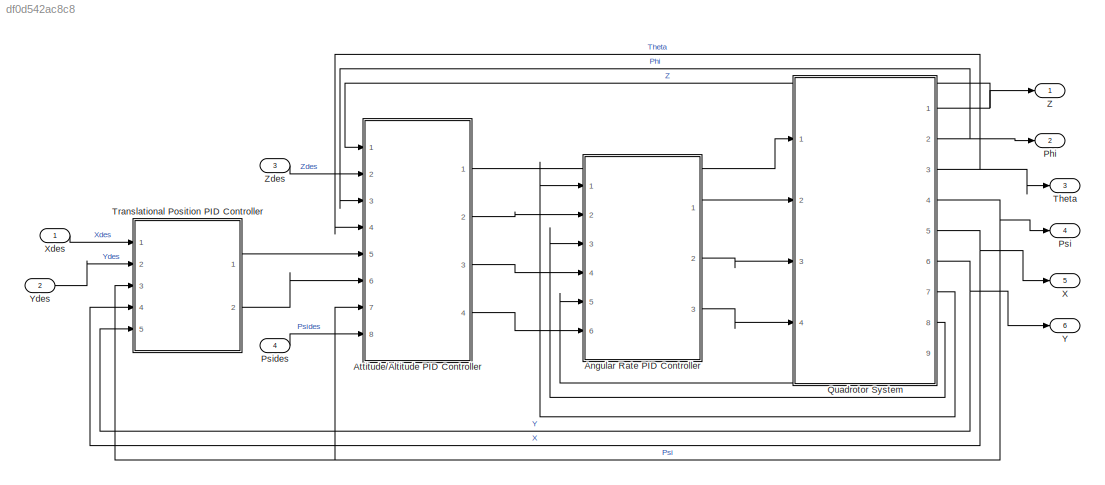
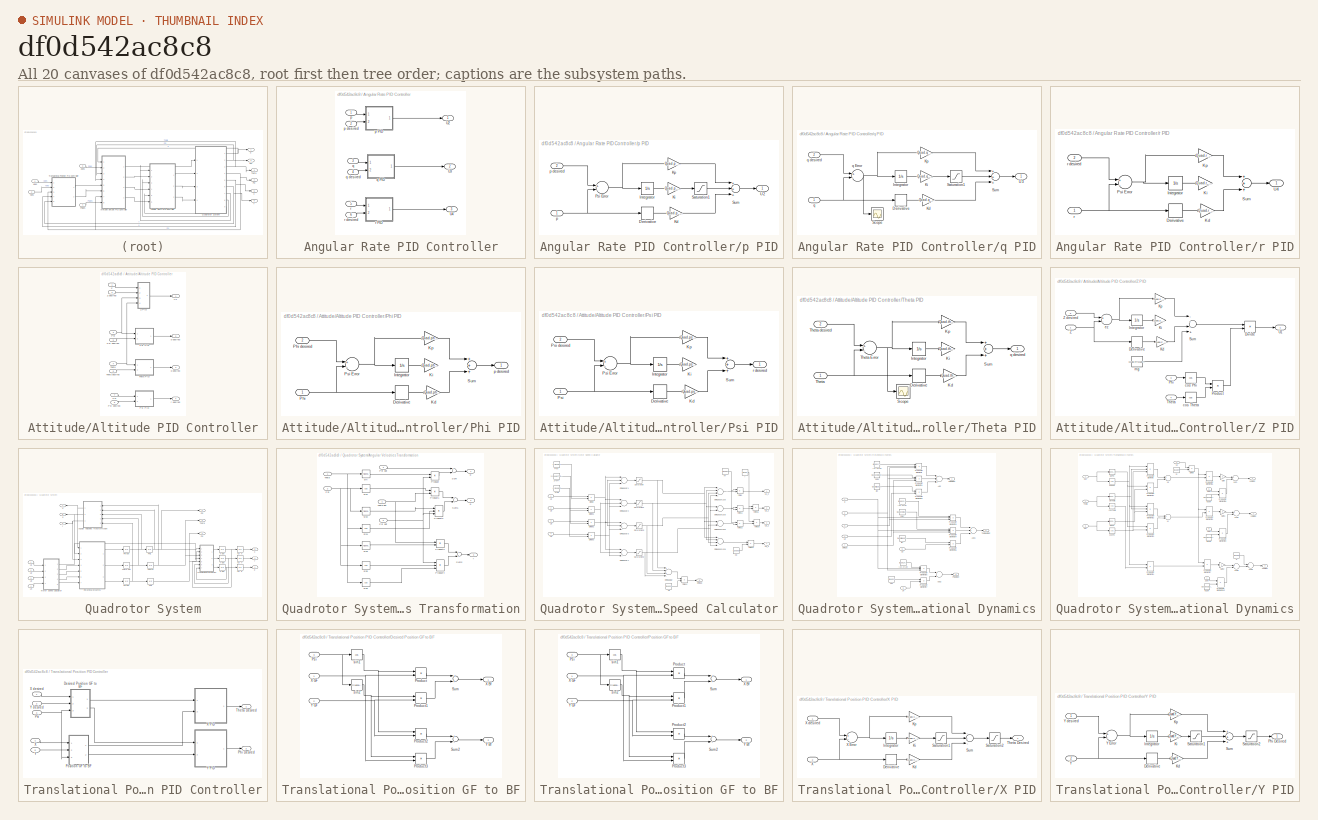
[diagram: thumbnail index - all 20 canvases of the model, root first then tree order]
MODEL slx_df0d542ac8c8
KIND model
CONFIG AbsTol = auto
CONFIG EnableMultiTasking = on
CONFIG FixedStep = 0.01
CONFIG MaxStep = auto
CONFIG MinStep = auto
CONFIG RelTol = 1e-3
CONFIG SampleTimeConstraint = Unconstrained
CONFIG Solver = ode45
CONFIG SolverName = ode45
CONFIG StartTime = 0.0
CONFIG StopTime = tspan(end)
WORKSPACE source: external: MAT-File  (data not in archive)
BLOCK [SubSystem] Angular Rate PID Controller
  Ports = [6, 3]
  RequestExecContextInheritance = off
  Variant = off
BLOCK [Outport] Angular Rate PID Controller/U2
  IconDisplay = Port number
BLOCK [Outport] Angular Rate PID Controller/U3
  IconDisplay = Port number
  Port = 2
BLOCK [Outport] Angular Rate PID Controller/U4
  IconDisplay = Port number
  Port = 3
BLOCK [Inport] Angular Rate PID Controller/p
  IconDisplay = Port number
BLOCK [SubSystem] Angular Rate PID Controller/p PID
  Ports = [2, 1]
  RequestExecContextInheritance = off
  Variant = off
BLOCK [Derivative] Angular Rate PID Controller/p PID/Derivative
BLOCK [Integrator] Angular Rate PID Controller/p PID/Integrator
  Ports = [1, 1]
BLOCK [Gain] Angular Rate PID Controller/p PID/Kd
  Gain = Quad.p_KD
  OutDataTypeStr = Inherit: Inherit via internal rule
  ParamDataTypeStr = Inherit: Inherit via internal rule
  SaturateOnIntegerOverflow = off
BLOCK [Gain] Angular Rate PID Controller/p PID/Ki
  Gain = Quad.p_KI
  OutDataTypeStr = Inherit: Inherit via internal rule
  ParamDataTypeStr = Inherit: Inherit via internal rule
  SaturateOnIntegerOverflow = off
BLOCK [Gain] Angular Rate PID Controller/p PID/Kp
  Gain = Quad.p_KP
  OutDataTypeStr = Inherit: Inherit via internal rule
  ParamDataTypeStr = Inherit: Inherit via internal rule
  SaturateOnIntegerOverflow = off
BLOCK [Sum] Angular Rate PID Controller/p PID/Psi Error
  InputSameDT = off
  Inputs = +-
  OutDataTypeStr = Inherit: Inherit via internal rule
  Ports = [2, 1]
  SaturateOnIntegerOverflow = off
BLOCK [Saturate] Angular Rate PID Controller/p PID/Saturation1
  InputPortMap = u0
  LowerLimit = Quad.U2_min
  Ports = [1, 1]
  UpperLimit = Quad.U2_max
BLOCK [Sum] Angular Rate PID Controller/p PID/Sum
  InputSameDT = off
  Inputs = +++
  OutDataTypeStr = Inherit: Inherit via internal rule
  Ports = [3, 1]
  SaturateOnIntegerOverflow = off
BLOCK [Outport] Angular Rate PID Controller/p PID/U2
  IconDisplay = Port number
BLOCK [Inport] Angular Rate PID Controller/p PID/p
  IconDisplay = Port number
BLOCK [Inport] Angular Rate PID Controller/p PID/p desired
  IconDisplay = Port number
  Port = 2
BLOCK [Inport] Angular Rate PID Controller/p desired
  IconDisplay = Port number
  Port = 2
BLOCK [Inport] Angular Rate PID Controller/q
  IconDisplay = Port number
  Port = 3
BLOCK [SubSystem] Angular Rate PID Controller/q PID
  Ports = [2, 1]
  RequestExecContextInheritance = off
  Variant = off
BLOCK [Derivative] Angular Rate PID Controller/q PID/Derivative
BLOCK [Integrator] Angular Rate PID Controller/q PID/Integrator
  Ports = [1, 1]
BLOCK [Gain] Angular Rate PID Controller/q PID/Kd
  Gain = Quad.q_KD
  OutDataTypeStr = Inherit: Inherit via internal rule
  ParamDataTypeStr = Inherit: Inherit via internal rule
  SaturateOnIntegerOverflow = off
BLOCK [Gain] Angular Rate PID Controller/q PID/Ki
  Gain = Quad.q_KI
  OutDataTypeStr = Inherit: Inherit via internal rule
  ParamDataTypeStr = Inherit: Inherit via internal rule
  SaturateOnIntegerOverflow = off
BLOCK [Gain] Angular Rate PID Controller/q PID/Kp
  Gain = Quad.q_KP
  OutDataTypeStr = Inherit: Inherit via internal rule
  ParamDataTypeStr = Inherit: Inherit via internal rule
  SaturateOnIntegerOverflow = off
BLOCK [Saturate] Angular Rate PID Controller/q PID/Saturation1
  InputPortMap = u0
  LowerLimit = Quad.U3_min
  Ports = [1, 1]
  UpperLimit = Quad.U3_max
BLOCK [Scope] Angular Rate PID Controller/q PID/Scope
  NumInputPorts = 1
  Ports = [1]
  ScopeSpecificationString = C++SS(StrPVP('Location','[188, 390, 512, 629]'),StrPVP('Open','off'),MxPVP('AxesTitles',53,'struct(''axes1'',''%<SignalLabel>'')'),StrPVP('SaveName','ScopeData11'),StrPVP('DataFormat','StructureWithTime'),StrPVP('BlockParamSampleTime','0'),StrPVP('LimitDataPoints','on'),StrPVP('Decimation','1'),StrPVP('BlockParamSampleInput','off'))
BLOCK [Sum] Angular Rate PID Controller/q PID/Sum
  InputSameDT = off
  Inputs = +++
  OutDataTypeStr = Inherit: Inherit via internal rule
  Ports = [3, 1]
  SaturateOnIntegerOverflow = off
BLOCK [Outport] Angular Rate PID Controller/q PID/U3
  IconDisplay = Port number
BLOCK [Inport] Angular Rate PID Controller/q PID/q
  IconDisplay = Port number
BLOCK [Sum] Angular Rate PID Controller/q PID/q Error
  InputSameDT = off
  Inputs = +-
  OutDataTypeStr = Inherit: Inherit via internal rule
  Ports = [2, 1]
  SaturateOnIntegerOverflow = off
BLOCK [Inport] Angular Rate PID Controller/q PID/q desired
  IconDisplay = Port number
  Port = 2
BLOCK [Inport] Angular Rate PID Controller/q desired
  IconDisplay = Port number
  Port = 4
BLOCK [Inport] Angular Rate PID Controller/r
  IconDisplay = Port number
  Port = 5
BLOCK [SubSystem] Angular Rate PID Controller/r PID
  Ports = [2, 1]
  RequestExecContextInheritance = off
  Variant = off
BLOCK [Derivative] Angular Rate PID Controller/r PID/Derivative
BLOCK [Integrator] Angular Rate PID Controller/r PID/Integrator
  Ports = [1, 1]
BLOCK [Gain] Angular Rate PID Controller/r PID/Kd
  Gain = Quad.r_KD
  OutDataTypeStr = Inherit: Inherit via internal rule
  ParamDataTypeStr = Inherit: Inherit via internal rule
  SaturateOnIntegerOverflow = off
BLOCK [Gain] Angular Rate PID Controller/r PID/Ki
  Gain = Quad.r_KI
  OutDataTypeStr = Inherit: Inherit via internal rule
  ParamDataTypeStr = Inherit: Inherit via internal rule
  SaturateOnIntegerOverflow = off
BLOCK [Gain] Angular Rate PID Controller/r PID/Kp
  Gain = Quad.r_KP
  OutDataTypeStr = Inherit: Inherit via internal rule
  ParamDataTypeStr = Inherit: Inherit via internal rule
  SaturateOnIntegerOverflow = off
BLOCK [Sum] Angular Rate PID Controller/r PID/Psi Error
  InputSameDT = off
  Inputs = +-
  OutDataTypeStr = Inherit: Inherit via internal rule
  Ports = [2, 1]
  SaturateOnIntegerOverflow = off
BLOCK [Sum] Angular Rate PID Controller/r PID/Sum
  InputSameDT = off
  Inputs = +++
  OutDataTypeStr = Inherit: Inherit via internal rule
  Ports = [3, 1]
  SaturateOnIntegerOverflow = off
BLOCK [Outport] Angular Rate PID Controller/r PID/U4
  IconDisplay = Port number
BLOCK [Inport] Angular Rate PID Controller/r PID/r
  IconDisplay = Port number
BLOCK [Inport] Angular Rate PID Controller/r PID/r desired
  IconDisplay = Port number
  Port = 2
BLOCK [Inport] Angular Rate PID Controller/r desired
  IconDisplay = Port number
  Port = 6
BLOCK [SubSystem] Attitude//Altitude PID Controller
  Ports = [8, 4]
  RequestExecContextInheritance = off
  Variant = off
BLOCK [Inport] Attitude//Altitude PID Controller/Phi
  IconDisplay = Port number
  Port = 3
BLOCK [SubSystem] Attitude//Altitude PID Controller/Phi PID
  Ports = [2, 1]
  RequestExecContextInheritance = off
  Variant = off
BLOCK [Derivative] Attitude//Altitude PID Controller/Phi PID/Derivative
BLOCK [Integrator] Attitude//Altitude PID Controller/Phi PID/Integrator
  Ports = [1, 1]
BLOCK [Gain] Attitude//Altitude PID Controller/Phi PID/Kd
  Gain = Quad.phi_KD
  OutDataTypeStr = Inherit: Inherit via internal rule
  ParamDataTypeStr = Inherit: Inherit via internal rule
  SaturateOnIntegerOverflow = off
BLOCK [Gain] Attitude//Altitude PID Controller/Phi PID/Ki
  Gain = Quad.phi_KI
  OutDataTypeStr = Inherit: Inherit via internal rule
  ParamDataTypeStr = Inherit: Inherit via internal rule
  SaturateOnIntegerOverflow = off
BLOCK [Gain] Attitude//Altitude PID Controller/Phi PID/Kp
  Gain = Quad.phi_KP
  OutDataTypeStr = Inherit: Inherit via internal rule
  ParamDataTypeStr = Inherit: Inherit via internal rule
  SaturateOnIntegerOverflow = off
BLOCK [Inport] Attitude//Altitude PID Controller/Phi PID/Phi
  IconDisplay = Port number
BLOCK [Inport] Attitude//Altitude PID Controller/Phi PID/Phi desired
  IconDisplay = Port number
  Port = 2
BLOCK [Sum] Attitude//Altitude PID Controller/Phi PID/Psi Error
  InputSameDT = off
  Inputs = +-
  OutDataTypeStr = Inherit: Inherit via internal rule
  Ports = [2, 1]
  SaturateOnIntegerOverflow = off
BLOCK [Sum] Attitude//Altitude PID Controller/Phi PID/Sum
  InputSameDT = off
  Inputs = +++
  OutDataTypeStr = Inherit: Inherit via internal rule
  Ports = [3, 1]
  SaturateOnIntegerOverflow = off
BLOCK [Outport] Attitude//Altitude PID Controller/Phi PID/p desired
  IconDisplay = Port number
BLOCK [Inport] Attitude//Altitude PID Controller/Phi desired
  IconDisplay = Port number
  Port = 6
BLOCK [Inport] Attitude//Altitude PID Controller/Psi
  IconDisplay = Port number
  Port = 7
BLOCK [SubSystem] Attitude//Altitude PID Controller/Psi PID
  Ports = [2, 1]
  RequestExecContextInheritance = off
  Variant = off
BLOCK [Derivative] Attitude//Altitude PID Controller/Psi PID/Derivative
BLOCK [Integrator] Attitude//Altitude PID Controller/Psi PID/Integrator
  Ports = [1, 1]
BLOCK [Gain] Attitude//Altitude PID Controller/Psi PID/Kd
  Gain = Quad.psi_KD
  OutDataTypeStr = Inherit: Inherit via internal rule
  ParamDataTypeStr = Inherit: Inherit via internal rule
  SaturateOnIntegerOverflow = off
BLOCK [Gain] Attitude//Altitude PID Controller/Psi PID/Ki
  Gain = Quad.psi_KI
  OutDataTypeStr = Inherit: Inherit via internal rule
  ParamDataTypeStr = Inherit: Inherit via internal rule
  SaturateOnIntegerOverflow = off
BLOCK [Gain] Attitude//Altitude PID Controller/Psi PID/Kp
  Gain = Quad.psi_KP
  OutDataTypeStr = Inherit: Inherit via internal rule
  ParamDataTypeStr = Inherit: Inherit via internal rule
  SaturateOnIntegerOverflow = off
BLOCK [Inport] Attitude//Altitude PID Controller/Psi PID/Psi
  IconDisplay = Port number
BLOCK [Sum] Attitude//Altitude PID Controller/Psi PID/Psi Error
  InputSameDT = off
  Inputs = +-
  OutDataTypeStr = Inherit: Inherit via internal rule
  Ports = [2, 1]
  SaturateOnIntegerOverflow = off
BLOCK [Inport] Attitude//Altitude PID Controller/Psi PID/Psi desired
  IconDisplay = Port number
  Port = 2
BLOCK [Sum] Attitude//Altitude PID Controller/Psi PID/Sum
  InputSameDT = off
  Inputs = +++
  OutDataTypeStr = Inherit: Inherit via internal rule
  Ports = [3, 1]
  SaturateOnIntegerOverflow = off
BLOCK [Outport] Attitude//Altitude PID Controller/Psi PID/r desired
  IconDisplay = Port number
BLOCK [Inport] Attitude//Altitude PID Controller/Psi desired
  IconDisplay = Port number
  Port = 8
BLOCK [Inport] Attitude//Altitude PID Controller/Theta
  IconDisplay = Port number
  Port = 4
BLOCK [SubSystem] Attitude//Altitude PID Controller/Theta PID
  Ports = [2, 1]
  RequestExecContextInheritance = off
  Variant = off
BLOCK [Derivative] Attitude//Altitude PID Controller/Theta PID/Derivative
BLOCK [Integrator] Attitude//Altitude PID Controller/Theta PID/Integrator
  Ports = [1, 1]
BLOCK [Gain] Attitude//Altitude PID Controller/Theta PID/Kd
  Gain = Quad.theta_KD
  OutDataTypeStr = Inherit: Inherit via internal rule
  ParamDataTypeStr = Inherit: Inherit via internal rule
  SaturateOnIntegerOverflow = off
BLOCK [Gain] Attitude//Altitude PID Controller/Theta PID/Ki
  Gain = Quad.theta_KI
  OutDataTypeStr = Inherit: Inherit via internal rule
  ParamDataTypeStr = Inherit: Inherit via internal rule
  SaturateOnIntegerOverflow = off
BLOCK [Gain] Attitude//Altitude PID Controller/Theta PID/Kp
  Gain = Quad.theta_KP
  OutDataTypeStr = Inherit: Inherit via internal rule
  ParamDataTypeStr = Inherit: Inherit via internal rule
  SaturateOnIntegerOverflow = off
BLOCK [Scope] Attitude//Altitude PID Controller/Theta PID/Scope
  NumInputPorts = 1
  Ports = [1]
  ScopeSpecificationString = C++SS(StrPVP('Location','[671, 276, 995, 515]'),StrPVP('Open','off'),MxPVP('AxesTitles',53,'struct(''axes1'',''%<SignalLabel>'')'),StrPVP('SaveName','ScopeData10'),StrPVP('DataFormat','StructureWithTime'),StrPVP('BlockParamSampleTime','0'),StrPVP('LimitDataPoints','on'),StrPVP('Decimation','1'),StrPVP('BlockParamSampleInput','off'))
BLOCK [Sum] Attitude//Altitude PID Controller/Theta PID/Sum
  InputSameDT = off
  Inputs = +++
  OutDataTypeStr = Inherit: Inherit via internal rule
  Ports = [3, 1]
  SaturateOnIntegerOverflow = off
BLOCK [Inport] Attitude//Altitude PID Controller/Theta PID/Theta
  IconDisplay = Port number
BLOCK [Sum] Attitude//Altitude PID Controller/Theta PID/Theta Error
  InputSameDT = off
  Inputs = +-
  OutDataTypeStr = Inherit: Inherit via internal rule
  Ports = [2, 1]
  SaturateOnIntegerOverflow = off
BLOCK [Inport] Attitude//Altitude PID Controller/Theta PID/Theta desired
  IconDisplay = Port number
  Port = 2
BLOCK [Outport] Attitude//Altitude PID Controller/Theta PID/q desired
  IconDisplay = Port number
BLOCK [Inport] Attitude//Altitude PID Controller/Theta desired
  IconDisplay = Port number
  Port = 5
BLOCK [Outport] Attitude//Altitude PID Controller/U1
  IconDisplay = Port number
BLOCK [Inport] Attitude//Altitude PID Controller/Z
  IconDisplay = Port number
BLOCK [SubSystem] Attitude//Altitude PID Controller/Z PID
  Ports = [4, 1]
  RequestExecContextInheritance = off
  Variant = off
BLOCK [Derivative] Attitude//Altitude PID Controller/Z PID/Derivative
BLOCK [Product] Attitude//Altitude PID Controller/Z PID/Divide
  InputSameDT = off
  Inputs = */
  OutDataTypeStr = Inherit: Inherit via internal rule
  Ports = [2, 1]
  RndMeth = Floor
  SaturateOnIntegerOverflow = off
BLOCK [Integrator] Attitude//Altitude PID Controller/Z PID/Integrator
  Ports = [1, 1]
BLOCK [Gain] Attitude//Altitude PID Controller/Z PID/Kd
  Gain = Quad.Z_KD
  OutDataTypeStr = Inherit: Inherit via internal rule
  ParamDataTypeStr = Inherit: Inherit via internal rule
  SaturateOnIntegerOverflow = off
BLOCK [Gain] Attitude//Altitude PID Controller/Z PID/Ki
  Gain = Quad.Z_KI
  OutDataTypeStr = Inherit: Inherit via internal rule
  ParamDataTypeStr = Inherit: Inherit via internal rule
  SaturateOnIntegerOverflow = off
BLOCK [Gain] Attitude//Altitude PID Controller/Z PID/Kp
  Gain = Quad.Z_KP
  OutDataTypeStr = Inherit: Inherit via internal rule
  ParamDataTypeStr = Inherit: Inherit via internal rule
  SaturateOnIntegerOverflow = off
BLOCK [Inport] Attitude//Altitude PID Controller/Z PID/Phi
  IconDisplay = Port number
  Port = 3
BLOCK [Product] Attitude//Altitude PID Controller/Z PID/Product
  InputSameDT = off
  OutDataTypeStr = Inherit: Inherit via internal rule
  Ports = [2, 1]
  SaturateOnIntegerOverflow = off
BLOCK [Sum] Attitude//Altitude PID Controller/Z PID/Sum
  InputSameDT = off
  Inputs = ---+
  OutDataTypeStr = Inherit: Inherit via internal rule
  Ports = [4, 1]
  SaturateOnIntegerOverflow = off
BLOCK [Inport] Attitude//Altitude PID Controller/Z PID/Theta
  IconDisplay = Port number
  Port = 4
BLOCK [Outport] Attitude//Altitude PID Controller/Z PID/U1
  IconDisplay = Port number
BLOCK [Inport] Attitude//Altitude PID Controller/Z PID/Z
  IconDisplay = Port number
BLOCK [Inport] Attitude//Altitude PID Controller/Z PID/Z desired
  IconDisplay = Port number
  Port = 2
BLOCK [Trigonometry] Attitude//Altitude PID Controller/Z PID/cos Phi
  Operator = cos
  Ports = [1, 1]
BLOCK [Trigonometry] Attitude//Altitude PID Controller/Z PID/cos Theta
  Operator = cos
  Ports = [1, 1]
BLOCK [Sum] Attitude//Altitude PID Controller/Z PID/ez
  InputSameDT = off
  Inputs = +-
  OutDataTypeStr = Inherit: Inherit via internal rule
  Ports = [2, 1]
  SaturateOnIntegerOverflow = off
BLOCK [Constant] Attitude//Altitude PID Controller/Z PID/mg
  Value = Quad.m*Quad.g
BLOCK [Inport] Attitude//Altitude PID Controller/Z desired
  IconDisplay = Port number
  Port = 2
BLOCK [Outport] Attitude//Altitude PID Controller/p desired
  IconDisplay = Port number
  Port = 2
BLOCK [Outport] Attitude//Altitude PID Controller/q desired
  IconDisplay = Port number
  Port = 3
BLOCK [Outport] Attitude//Altitude PID Controller/r desired
  IconDisplay = Port number
  Port = 4
BLOCK [Outport] Phi
  IconDisplay = Port number
  Port = 2
BLOCK [Outport] Psi
  IconDisplay = Port number
  Port = 4
BLOCK [Inport] Psides
  IconDisplay = Port number
  Port = 4
BLOCK [SubSystem] Quadrotor System
  Ports = [4, 9]
  RequestExecContextInheritance = off
  Variant = off
BLOCK [Integrator] Quadrotor System/Act X
  Ports = [1, 1]
BLOCK [Integrator] Quadrotor System/Act Y
  Ports = [1, 1]
BLOCK [Integrator] Quadrotor System/Act Z
  Ports = [1, 1]
BLOCK [SubSystem] Quadrotor System/Angular Velocities Transformation
  Ports = [5, 3]
  RequestExecContextInheritance = off
  Variant = off
BLOCK [Inport] Quadrotor System/Angular Velocities Transformation/Phi
  IconDisplay = Port number
  Port = 2
BLOCK [Inport] Quadrotor System/Angular Velocities Transformation/Phi dot
  IconDisplay = Port number
  Port = 3
BLOCK [Product] Quadrotor System/Angular Velocities Transformation/Product
  InputSameDT = off
  OutDataTypeStr = Inherit: Inherit via internal rule
  Ports = [2, 1]
  SaturateOnIntegerOverflow = off
BLOCK [Product] Quadrotor System/Angular Velocities Transformation/Product1
  InputSameDT = off
  OutDataTypeStr = Inherit: Inherit via internal rule
  Ports = [2, 1]
  SaturateOnIntegerOverflow = off
BLOCK [Product] Quadrotor System/Angular Velocities Transformation/Product2
  InputSameDT = off
  Inputs = 3
  OutDataTypeStr = Inherit: Inherit via internal rule
  Ports = [3, 1]
  SaturateOnIntegerOverflow = off
BLOCK [Product] Quadrotor System/Angular Velocities Transformation/Product3
  InputSameDT = off
  OutDataTypeStr = Inherit: Inherit via internal rule
  Ports = [2, 1]
  SaturateOnIntegerOverflow = off
BLOCK [Product] Quadrotor System/Angular Velocities Transformation/Product4
  InputSameDT = off
  Inputs = 3
  OutDataTypeStr = Inherit: Inherit via internal rule
  Ports = [3, 1]
  SaturateOnIntegerOverflow = off
BLOCK [Inport] Quadrotor System/Angular Velocities Transformation/Psi dot
  IconDisplay = Port number
  Port = 5
BLOCK [Sum] Quadrotor System/Angular Velocities Transformation/Sum
  InputSameDT = off
  Inputs = +-
  OutDataTypeStr = Inherit: Inherit via internal rule
  Ports = [2, 1]
  SaturateOnIntegerOverflow = off
BLOCK [Sum] Quadrotor System/Angular Velocities Transformation/Sum1
  InputSameDT = off
  OutDataTypeStr = Inherit: Inherit via internal rule
  Ports = [2, 1]
  SaturateOnIntegerOverflow = off
BLOCK [Sum] Quadrotor System/Angular Velocities Transformation/Sum2
  InputSameDT = off
  OutDataTypeStr = Inherit: Inherit via internal rule
  Ports = [2, 1]
  SaturateOnIntegerOverflow = off
BLOCK [Inport] Quadrotor System/Angular Velocities Transformation/Theta
  IconDisplay = Port number
BLOCK [Inport] Quadrotor System/Angular Velocities Transformation/Theta dot
  IconDisplay = Port number
  Port = 4
BLOCK [Outport] Quadrotor System/Angular Velocities Transformation/p
  IconDisplay = Port number
BLOCK [Outport] Quadrotor System/Angular Velocities Transformation/q
  IconDisplay = Port number
  Port = 2
BLOCK [Outport] Quadrotor System/Angular Velocities Transformation/r
  IconDisplay = Port number
  Port = 3
BLOCK [Trigonometry] Quadrotor System/Angular Velocities Transformation/sin
  Ports = [1, 1]
BLOCK [Trigonometry] Quadrotor System/Angular Velocities Transformation/sin1
  Operator = cos
  Ports = [1, 1]
BLOCK [Trigonometry] Quadrotor System/Angular Velocities Transformation/sin2
  Ports = [1, 1]
BLOCK [Trigonometry] Quadrotor System/Angular Velocities Transformation/sin3
  Ports = [1, 1]
BLOCK [Trigonometry] Quadrotor System/Angular Velocities Transformation/sin4
  Operator = cos
  Ports = [1, 1]
BLOCK [Trigonometry] Quadrotor System/Angular Velocities Transformation/sin5
  Operator = cos
  Ports = [1, 1]
BLOCK [Trigonometry] Quadrotor System/Angular Velocities Transformation/sin6
  Operator = cos
  Ports = [1, 1]
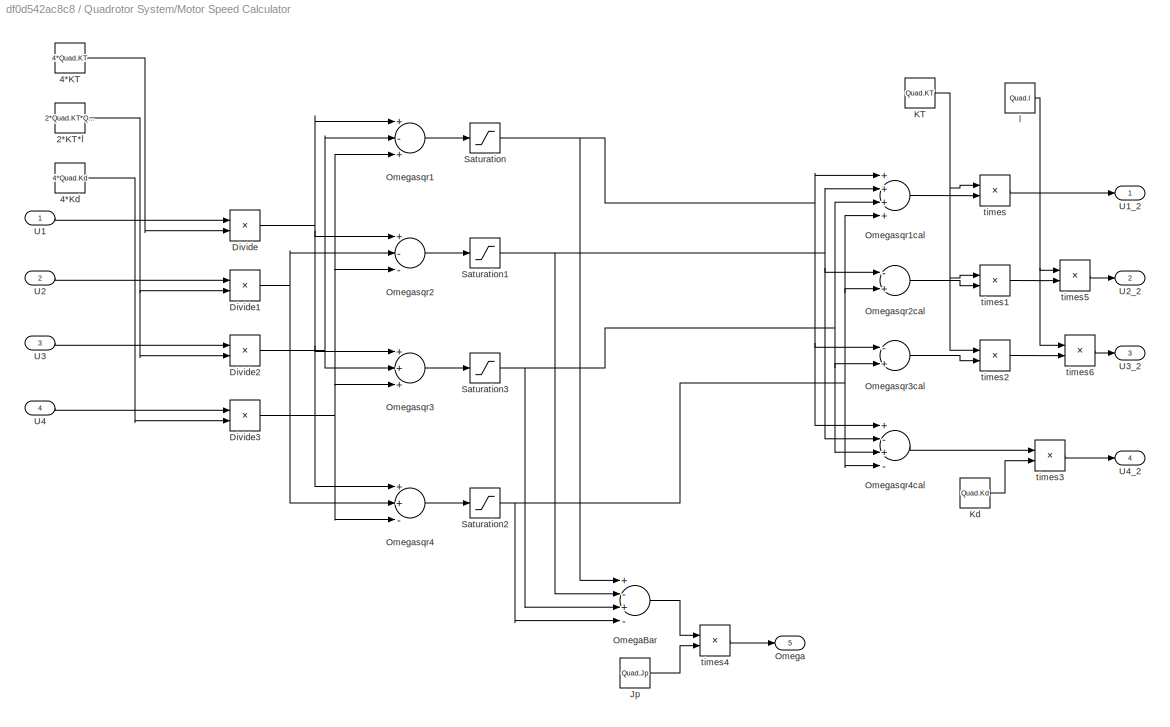
BLOCK [SubSystem] Quadrotor System/Motor Speed Calculator
  Ports = [4, 5]
  RequestExecContextInheritance = off
  Variant = off
BLOCK [Constant] Quadrotor System/Motor Speed Calculator/2*KT*l
  Value = 2*Quad.KT*Quad.l
BLOCK [Constant] Quadrotor System/Motor Speed Calculator/4*KT
  Value = 4*Quad.KT
BLOCK [Constant] Quadrotor System/Motor Speed Calculator/4*Kd
  Value = 4*Quad.Kd
BLOCK [Product] Quadrotor System/Motor Speed Calculator/Divide
  InputSameDT = off
  Inputs = */
  OutDataTypeStr = Inherit: Inherit via internal rule
  Ports = [2, 1]
  RndMeth = Floor
  SaturateOnIntegerOverflow = off
BLOCK [Product] Quadrotor System/Motor Speed Calculator/Divide1
  InputSameDT = off
  Inputs = */
  OutDataTypeStr = Inherit: Inherit via internal rule
  Ports = [2, 1]
  RndMeth = Floor
  SaturateOnIntegerOverflow = off
BLOCK [Product] Quadrotor System/Motor Speed Calculator/Divide2
  InputSameDT = off
  Inputs = */
  OutDataTypeStr = Inherit: Inherit via internal rule
  Ports = [2, 1]
  RndMeth = Floor
  SaturateOnIntegerOverflow = off
BLOCK [Product] Quadrotor System/Motor Speed Calculator/Divide3
  InputSameDT = off
  Inputs = */
  OutDataTypeStr = Inherit: Inherit via internal rule
  Ports = [2, 1]
  RndMeth = Floor
  SaturateOnIntegerOverflow = off
BLOCK [Constant] Quadrotor System/Motor Speed Calculator/Jp
  Value = Quad.Jp
BLOCK [Constant] Quadrotor System/Motor Speed Calculator/KT
  Value = Quad.KT
BLOCK [Constant] Quadrotor System/Motor Speed Calculator/Kd
  Value = Quad.Kd
BLOCK [Outport] Quadrotor System/Motor Speed Calculator/Omega
  IconDisplay = Port number
  Port = 5
BLOCK [Sum] Quadrotor System/Motor Speed Calculator/OmegaBar
  InputSameDT = off
  Inputs = +-+-
  OutDataTypeStr = Inherit: Inherit via internal rule
  Ports = [4, 1]
  SaturateOnIntegerOverflow = off
BLOCK [Sum] Quadrotor System/Motor Speed Calculator/Omegasqr1
  InputSameDT = off
  Inputs = +-+
  OutDataTypeStr = Inherit: Inherit via internal rule
  Ports = [3, 1]
  SaturateOnIntegerOverflow = off
BLOCK [Sum] Quadrotor System/Motor Speed Calculator/Omegasqr1cal
  InputSameDT = off
  Inputs = ++++
  OutDataTypeStr = Inherit: Inherit via internal rule
  Ports = [4, 1]
  SaturateOnIntegerOverflow = off
BLOCK [Sum] Quadrotor System/Motor Speed Calculator/Omegasqr2
  InputSameDT = off
  Inputs = +--
  OutDataTypeStr = Inherit: Inherit via internal rule
  Ports = [3, 1]
  SaturateOnIntegerOverflow = off
BLOCK [Sum] Quadrotor System/Motor Speed Calculator/Omegasqr2cal
  InputSameDT = off
  Inputs = -+
  OutDataTypeStr = Inherit: Inherit via internal rule
  Ports = [2, 1]
  SaturateOnIntegerOverflow = off
BLOCK [Sum] Quadrotor System/Motor Speed Calculator/Omegasqr3
  InputSameDT = off
  Inputs = +++
  OutDataTypeStr = Inherit: Inherit via internal rule
  Ports = [3, 1]
  SaturateOnIntegerOverflow = off
BLOCK [Sum] Quadrotor System/Motor Speed Calculator/Omegasqr3cal
  InputSameDT = off
  Inputs = -+
  OutDataTypeStr = Inherit: Inherit via internal rule
  Ports = [2, 1]
  SaturateOnIntegerOverflow = off
BLOCK [Sum] Quadrotor System/Motor Speed Calculator/Omegasqr4
  InputSameDT = off
  Inputs = ++-
  OutDataTypeStr = Inherit: Inherit via internal rule
  Ports = [3, 1]
  SaturateOnIntegerOverflow = off
BLOCK [Sum] Quadrotor System/Motor Speed Calculator/Omegasqr4cal
  InputSameDT = off
  Inputs = +-+-
  OutDataTypeStr = Inherit: Inherit via internal rule
  Ports = [4, 1]
  SaturateOnIntegerOverflow = off
BLOCK [Saturate] Quadrotor System/Motor Speed Calculator/Saturation
  InputPortMap = u0
  LowerLimit = Quad.min_motor_speed^2
  Ports = [1, 1]
  UpperLimit = Quad.max_motor_speed^2
  ZeroCross = off
BLOCK [Saturate] Quadrotor System/Motor Speed Calculator/Saturation1
  InputPortMap = u0
  LowerLimit = Quad.min_motor_speed^2
  Ports = [1, 1]
  UpperLimit = Quad.max_motor_speed^2
  ZeroCross = off
BLOCK [Saturate] Quadrotor System/Motor Speed Calculator/Saturation2
  InputPortMap = u0
  LowerLimit = Quad.min_motor_speed^2
  Ports = [1, 1]
  UpperLimit = Quad.max_motor_speed^2
  ZeroCross = off
BLOCK [Saturate] Quadrotor System/Motor Speed Calculator/Saturation3
  InputPortMap = u0
  LowerLimit = Quad.min_motor_speed^2
  Ports = [1, 1]
  UpperLimit = Quad.max_motor_speed^2
  ZeroCross = off
BLOCK [Inport] Quadrotor System/Motor Speed Calculator/U1
  IconDisplay = Port number
BLOCK [Outport] Quadrotor System/Motor Speed Calculator/U1_2
  IconDisplay = Port number
BLOCK [Inport] Quadrotor System/Motor Speed Calculator/U2
  IconDisplay = Port number
  Port = 2
BLOCK [Outport] Quadrotor System/Motor Speed Calculator/U2_2
  IconDisplay = Port number
  Port = 2
BLOCK [Inport] Quadrotor System/Motor Speed Calculator/U3
  IconDisplay = Port number
  Port = 3
BLOCK [Outport] Quadrotor System/Motor Speed Calculator/U3_2
  IconDisplay = Port number
  Port = 3
BLOCK [Inport] Quadrotor System/Motor Speed Calculator/U4
  IconDisplay = Port number
  Port = 4
BLOCK [Outport] Quadrotor System/Motor Speed Calculator/U4_2
  IconDisplay = Port number
  Port = 4
BLOCK [Constant] Quadrotor System/Motor Speed Calculator/l
  Value = Quad.l
BLOCK [Product] Quadrotor System/Motor Speed Calculator/times
  InputSameDT = off
  Inputs = **
  OutDataTypeStr = Inherit: Inherit via internal rule
  Ports = [2, 1]
  RndMeth = Floor
  SaturateOnIntegerOverflow = off
BLOCK [Product] Quadrotor System/Motor Speed Calculator/times1
  InputSameDT = off
  Inputs = **
  OutDataTypeStr = Inherit: Inherit via internal rule
  Ports = [2, 1]
  RndMeth = Floor
  SaturateOnIntegerOverflow = off
BLOCK [Product] Quadrotor System/Motor Speed Calculator/times2
  InputSameDT = off
  Inputs = **
  OutDataTypeStr = Inherit: Inherit via internal rule
  Ports = [2, 1]
  RndMeth = Floor
  SaturateOnIntegerOverflow = off
BLOCK [Product] Quadrotor System/Motor Speed Calculator/times3
  InputSameDT = off
  Inputs = **
  OutDataTypeStr = Inherit: Inherit via internal rule
  Ports = [2, 1]
  RndMeth = Floor
  SaturateOnIntegerOverflow = off
BLOCK [Product] Quadrotor System/Motor Speed Calculator/times4
  InputSameDT = off
  Inputs = **
  OutDataTypeStr = Inherit: Inherit via internal rule
  Ports = [2, 1]
  RndMeth = Floor
  SaturateOnIntegerOverflow = off
BLOCK [Product] Quadrotor System/Motor Speed Calculator/times5
  InputSameDT = off
  Inputs = **
  OutDataTypeStr = Inherit: Inherit via internal rule
  Ports = [2, 1]
  RndMeth = Floor
  SaturateOnIntegerOverflow = off
BLOCK [Product] Quadrotor System/Motor Speed Calculator/times6
  InputSameDT = off
  Inputs = **
  OutDataTypeStr = Inherit: Inherit via internal rule
  Ports = [2, 1]
  RndMeth = Floor
  SaturateOnIntegerOverflow = off
BLOCK [Outport] Quadrotor System/Phi
  IconDisplay = Port number
  Port = 2
BLOCK [Integrator] Quadrotor System/Phi dot
  Ports = [1, 1]
BLOCK [Integrator] Quadrotor System/Phi1
  Ports = [1, 1]
  ZeroCross = off
BLOCK [Outport] Quadrotor System/Psi
  IconDisplay = Port number
  Port = 4
BLOCK [Integrator] Quadrotor System/Psi dot
  Ports = [1, 1]
  ZeroCross = off
BLOCK [Integrator] Quadrotor System/Psi1
  Ports = [1, 1]
  ZeroCross = off
BLOCK [SubSystem] Quadrotor System/Rotational Dynamics
  Ports = [7, 3]
  RequestExecContextInheritance = off
  Variant = off
BLOCK [Constant] Quadrotor System/Rotational Dynamics/(Jx-Jy)//Jz
  Value = (Quad.Jx - Quad.Jy)/Quad.Jz
BLOCK [Constant] Quadrotor System/Rotational Dynamics/(Jy-Jz)//Jx
  Value = (Quad.Jy - Quad.Jz)/Quad.Jx
BLOCK [Constant] Quadrotor System/Rotational Dynamics/(Jz-Jx)//Jy
  Value = (Quad.Jz - Quad.Jx)/Quad.Jy
BLOCK [Constant] Quadrotor System/Rotational Dynamics/1//Jz
  Value = 1/Quad.Jz
BLOCK [Sum] Quadrotor System/Rotational Dynamics/Add
  InputSameDT = off
  Inputs = +-+
  OutDataTypeStr = Inherit: Inherit via internal rule
  Ports = [3, 1]
  SaturateOnIntegerOverflow = off
BLOCK [Sum] Quadrotor System/Rotational Dynamics/Add1
  InputSameDT = off
  Inputs = +++
  OutDataTypeStr = Inherit: Inherit via internal rule
  Ports = [3, 1]
  SaturateOnIntegerOverflow = off
BLOCK [Sum] Quadrotor System/Rotational Dynamics/Add2
  InputSameDT = off
  OutDataTypeStr = Inherit: Inherit via internal rule
  Ports = [2, 1]
  SaturateOnIntegerOverflow = off
BLOCK [Constant] Quadrotor System/Rotational Dynamics/Jp//Jx
  Value = Quad.Jp/Quad.Jx
BLOCK [Constant] Quadrotor System/Rotational Dynamics/Jp//Jy
  Value = Quad.Jp/Quad.Jy
BLOCK [Inport] Quadrotor System/Rotational Dynamics/Omega
  IconDisplay = Port number
  Port = 7
BLOCK [Outport] Quadrotor System/Rotational Dynamics/Phi dot dot
  IconDisplay = Port number
BLOCK [Product] Quadrotor System/Rotational Dynamics/Product of Elements
  InputSameDT = off
  Inputs = 3
  OutDataTypeStr = Inherit: Inherit via internal rule
  Ports = [3, 1]
  RndMeth = Floor
  SaturateOnIntegerOverflow = off
BLOCK [Product] Quadrotor System/Rotational Dynamics/Product of Elements1
  InputSameDT = off
  Inputs = 3
  OutDataTypeStr = Inherit: Inherit via internal rule
  Ports = [3, 1]
  RndMeth = Floor
  SaturateOnIntegerOverflow = off
BLOCK [Product] Quadrotor System/Rotational Dynamics/Product of Elements2
  InputSameDT = off
  OutDataTypeStr = Inherit: Inherit via internal rule
  Ports = [2, 1]
  RndMeth = Floor
  SaturateOnIntegerOverflow = off
BLOCK [Product] Quadrotor System/Rotational Dynamics/Product of Elements3
  InputSameDT = off
  Inputs = 3
  OutDataTypeStr = Inherit: Inherit via internal rule
  Ports = [3, 1]
  RndMeth = Floor
  SaturateOnIntegerOverflow = off
BLOCK [Product] Quadrotor System/Rotational Dynamics/Product of Elements4
  InputSameDT = off
  Inputs = 3
  OutDataTypeStr = Inherit: Inherit via internal rule
  Ports = [3, 1]
  RndMeth = Floor
  SaturateOnIntegerOverflow = off
BLOCK [Product] Quadrotor System/Rotational Dynamics/Product of Elements5
  InputSameDT = off
  OutDataTypeStr = Inherit: Inherit via internal rule
  Ports = [2, 1]
  RndMeth = Floor
  SaturateOnIntegerOverflow = off
BLOCK [Product] Quadrotor System/Rotational Dynamics/Product of Elements6
  InputSameDT = off
  Inputs = 3
  OutDataTypeStr = Inherit: Inherit via internal rule
  Ports = [3, 1]
  RndMeth = Floor
  SaturateOnIntegerOverflow = off
BLOCK [Product] Quadrotor System/Rotational Dynamics/Product of Elements7
  InputSameDT = off
  OutDataTypeStr = Inherit: Inherit via internal rule
  Ports = [2, 1]
  RndMeth = Floor
  SaturateOnIntegerOverflow = off
BLOCK [Outport] Quadrotor System/Rotational Dynamics/Psi dot dot
  IconDisplay = Port number
  Port = 3
BLOCK [Outport] Quadrotor System/Rotational Dynamics/Theta dot dot
  IconDisplay = Port number
  Port = 2
BLOCK [Inport] Quadrotor System/Rotational Dynamics/U2
  IconDisplay = Port number
  Port = 4
BLOCK [Inport] Quadrotor System/Rotational Dynamics/U3
  IconDisplay = Port number
  Port = 5
BLOCK [Inport] Quadrotor System/Rotational Dynamics/U4
  IconDisplay = Port number
  Port = 6
BLOCK [Constant] Quadrotor System/Rotational Dynamics/l//Jx
  Value = Quad.l/Quad.Jx
BLOCK [Constant] Quadrotor System/Rotational Dynamics/l//Jy
  Value = Quad.l/Quad.Jy
BLOCK [Inport] Quadrotor System/Rotational Dynamics/p
  IconDisplay = Port number
BLOCK [Inport] Quadrotor System/Rotational Dynamics/q
  IconDisplay = Port number
  Port = 2
BLOCK [Inport] Quadrotor System/Rotational Dynamics/r
  IconDisplay = Port number
  Port = 3
BLOCK [Outport] Quadrotor System/Theta
  IconDisplay = Port number
  Port = 3
BLOCK [Integrator] Quadrotor System/Theta dot
  Ports = [1, 1]
  ZeroCross = off
BLOCK [Integrator] Quadrotor System/Theta1
  Ports = [1, 1]
  ZeroCross = off
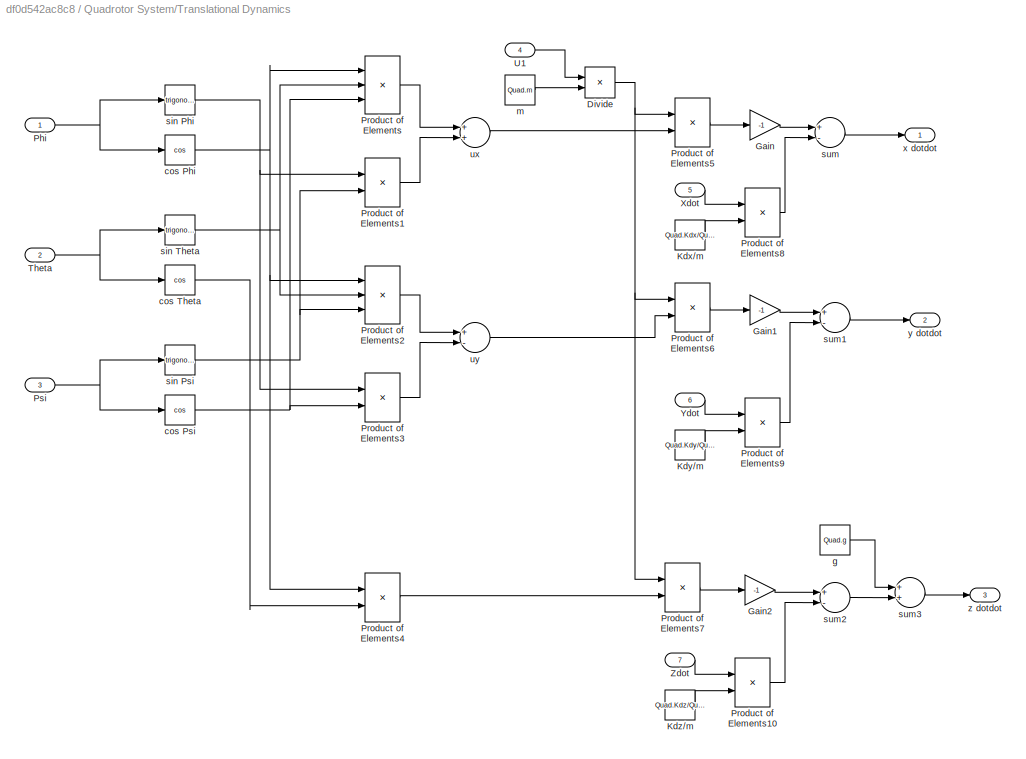
BLOCK [SubSystem] Quadrotor System/Translational Dynamics
  Ports = [7, 3]
  RequestExecContextInheritance = off
  Variant = off
BLOCK [Product] Quadrotor System/Translational Dynamics/Divide
  InputSameDT = off
  Inputs = */
  OutDataTypeStr = Inherit: Inherit via internal rule
  Ports = [2, 1]
  RndMeth = Floor
  SaturateOnIntegerOverflow = off
BLOCK [Gain] Quadrotor System/Translational Dynamics/Gain
  Gain = -1
  OutDataTypeStr = Inherit: Inherit via internal rule
  ParamDataTypeStr = Inherit: Inherit via internal rule
  SaturateOnIntegerOverflow = off
BLOCK [Gain] Quadrotor System/Translational Dynamics/Gain1
  Gain = -1
  OutDataTypeStr = Inherit: Inherit via internal rule
  ParamDataTypeStr = Inherit: Inherit via internal rule
  SaturateOnIntegerOverflow = off
BLOCK [Gain] Quadrotor System/Translational Dynamics/Gain2
  Gain = -1
  OutDataTypeStr = Inherit: Inherit via internal rule
  ParamDataTypeStr = Inherit: Inherit via internal rule
  SaturateOnIntegerOverflow = off
BLOCK [Constant] Quadrotor System/Translational Dynamics/Kdx//m
  Value = Quad.Kdx/Quad.m
BLOCK [Constant] Quadrotor System/Translational Dynamics/Kdy//m
  Value = Quad.Kdy/Quad.m
BLOCK [Constant] Quadrotor System/Translational Dynamics/Kdz//m
  Value = Quad.Kdz/Quad.m
BLOCK [Inport] Quadrotor System/Translational Dynamics/Phi
  IconDisplay = Port number
BLOCK [Product] Quadrotor System/Translational Dynamics/Product of Elements
  InputSameDT = off
  Inputs = 3
  OutDataTypeStr = Inherit: Inherit via internal rule
  Ports = [3, 1]
  RndMeth = Floor
  SaturateOnIntegerOverflow = off
BLOCK [Product] Quadrotor System/Translational Dynamics/Product of Elements1
  InputSameDT = off
  OutDataTypeStr = Inherit: Inherit via internal rule
  Ports = [2, 1]
  RndMeth = Floor
  SaturateOnIntegerOverflow = off
BLOCK [Product] Quadrotor System/Translational Dynamics/Product of Elements10
  InputSameDT = off
  OutDataTypeStr = Inherit: Inherit via internal rule
  Ports = [2, 1]
  RndMeth = Floor
  SaturateOnIntegerOverflow = off
BLOCK [Product] Quadrotor System/Translational Dynamics/Product of Elements2
  InputSameDT = off
  Inputs = 3
  OutDataTypeStr = Inherit: Inherit via internal rule
  Ports = [3, 1]
  RndMeth = Floor
  SaturateOnIntegerOverflow = off
BLOCK [Product] Quadrotor System/Translational Dynamics/Product of Elements3
  InputSameDT = off
  OutDataTypeStr = Inherit: Inherit via internal rule
  Ports = [2, 1]
  RndMeth = Floor
  SaturateOnIntegerOverflow = off
BLOCK [Product] Quadrotor System/Translational Dynamics/Product of Elements4
  InputSameDT = off
  OutDataTypeStr = Inherit: Inherit via internal rule
  Ports = [2, 1]
  RndMeth = Floor
  SaturateOnIntegerOverflow = off
BLOCK [Product] Quadrotor System/Translational Dynamics/Product of Elements5
  InputSameDT = off
  OutDataTypeStr = Inherit: Inherit via internal rule
  Ports = [2, 1]
  RndMeth = Floor
  SaturateOnIntegerOverflow = off
BLOCK [Product] Quadrotor System/Translational Dynamics/Product of Elements6
  InputSameDT = off
  OutDataTypeStr = Inherit: Inherit via internal rule
  Ports = [2, 1]
  RndMeth = Floor
  SaturateOnIntegerOverflow = off
BLOCK [Product] Quadrotor System/Translational Dynamics/Product of Elements7
  InputSameDT = off
  OutDataTypeStr = Inherit: Inherit via internal rule
  Ports = [2, 1]
  RndMeth = Floor
  SaturateOnIntegerOverflow = off
BLOCK [Product] Quadrotor System/Translational Dynamics/Product of Elements8
  InputSameDT = off
  OutDataTypeStr = Inherit: Inherit via internal rule
  Ports = [2, 1]
  RndMeth = Floor
  SaturateOnIntegerOverflow = off
BLOCK [Product] Quadrotor System/Translational Dynamics/Product of Elements9
  InputSameDT = off
  OutDataTypeStr = Inherit: Inherit via internal rule
  Ports = [2, 1]
  RndMeth = Floor
  SaturateOnIntegerOverflow = off
BLOCK [Inport] Quadrotor System/Translational Dynamics/Psi
  IconDisplay = Port number
  Port = 3
BLOCK [Inport] Quadrotor System/Translational Dynamics/Theta
  IconDisplay = Port number
  Port = 2
BLOCK [Inport] Quadrotor System/Translational Dynamics/U1
  IconDisplay = Port number
  Port = 4
BLOCK [Inport] Quadrotor System/Translational Dynamics/Xdot
  IconDisplay = Port number
  Port = 5
BLOCK [Inport] Quadrotor System/Translational Dynamics/Ydot
  IconDisplay = Port number
  Port = 6
BLOCK [Inport] Quadrotor System/Translational Dynamics/Zdot
  IconDisplay = Port number
  Port = 7
BLOCK [Trigonometry] Quadrotor System/Translational Dynamics/cos Phi
  Operator = cos
  Ports = [1, 1]
BLOCK [Trigonometry] Quadrotor System/Translational Dynamics/cos Psi
  Operator = cos
  Ports = [1, 1]
BLOCK [Trigonometry] Quadrotor System/Translational Dynamics/cos Theta
  Operator = cos
  Ports = [1, 1]
BLOCK [Constant] Quadrotor System/Translational Dynamics/g
  Value = Quad.g
BLOCK [Constant] Quadrotor System/Translational Dynamics/m
  Value = Quad.m
BLOCK [Trigonometry] Quadrotor System/Translational Dynamics/sin Phi
  Ports = [1, 1]
BLOCK [Trigonometry] Quadrotor System/Translational Dynamics/sin Psi
  Ports = [1, 1]
BLOCK [Trigonometry] Quadrotor System/Translational Dynamics/sin Theta
  Ports = [1, 1]
BLOCK [Sum] Quadrotor System/Translational Dynamics/sum
  InputSameDT = off
  Inputs = +-
  OutDataTypeStr = Inherit: Inherit via internal rule
  Ports = [2, 1]
  SaturateOnIntegerOverflow = off
BLOCK [Sum] Quadrotor System/Translational Dynamics/sum1
  InputSameDT = off
  Inputs = +-
  OutDataTypeStr = Inherit: Inherit via internal rule
  Ports = [2, 1]
  SaturateOnIntegerOverflow = off
BLOCK [Sum] Quadrotor System/Translational Dynamics/sum2
  InputSameDT = off
  Inputs = +-
  OutDataTypeStr = Inherit: Inherit via internal rule
  Ports = [2, 1]
  SaturateOnIntegerOverflow = off
BLOCK [Sum] Quadrotor System/Translational Dynamics/sum3
  InputSameDT = off
  OutDataTypeStr = Inherit: Inherit via internal rule
  Ports = [2, 1]
  SaturateOnIntegerOverflow = off
BLOCK [Sum] Quadrotor System/Translational Dynamics/ux
  InputSameDT = off
  OutDataTypeStr = Inherit: Inherit via internal rule
  Ports = [2, 1]
  SaturateOnIntegerOverflow = off
BLOCK [Sum] Quadrotor System/Translational Dynamics/uy
  InputSameDT = off
  Inputs = +-
  OutDataTypeStr = Inherit: Inherit via internal rule
  Ports = [2, 1]
  SaturateOnIntegerOverflow = off
BLOCK [Outport] Quadrotor System/Translational Dynamics/x dotdot
  IconDisplay = Port number
BLOCK [Outport] Quadrotor System/Translational Dynamics/y dotdot
  IconDisplay = Port number
  Port = 2
BLOCK [Outport] Quadrotor System/Translational Dynamics/z dotdot
  IconDisplay = Port number
  Port = 3
BLOCK [Inport] Quadrotor System/U1
  IconDisplay = Port number
BLOCK [Inport] Quadrotor System/U2
  IconDisplay = Port number
  Port = 2
BLOCK [Inport] Quadrotor System/U3
  IconDisplay = Port number
  Port = 3
BLOCK [Inport] Quadrotor System/U4
  IconDisplay = Port number
  Port = 4
BLOCK [Outport] Quadrotor System/X
  IconDisplay = Port number
  Port = 5
BLOCK [Integrator] Quadrotor System/X dot
  Ports = [1, 1]
BLOCK [Outport] Quadrotor System/Y
  IconDisplay = Port number
  Port = 6
BLOCK [Integrator] Quadrotor System/Y dot
  Ports = [1, 1]
BLOCK [Outport] Quadrotor System/Z
  IconDisplay = Port number
BLOCK [Integrator] Quadrotor System/Z dot
  Ports = [1, 1]
BLOCK [Outport] Quadrotor System/p
  IconDisplay = Port number
  Port = 7
BLOCK [Outport] Quadrotor System/q
  IconDisplay = Port number
  Port = 8
BLOCK [Outport] Quadrotor System/r
  IconDisplay = Port number
  Port = 9
BLOCK [Outport] Theta
  IconDisplay = Port number
  Port = 3
BLOCK [SubSystem] Translational Position PID Controller
  Ports = [5, 2]
  RequestExecContextInheritance = off
  Variant = off
BLOCK [SubSystem] Translational Position PID Controller/Desired Position GF to BF
  Ports = [3, 2]
  RequestExecContextInheritance = off
  Variant = off
BLOCK [Product] Translational Position PID Controller/Desired Position GF to BF/Product
  InputSameDT = off
  OutDataTypeStr = Inherit: Inherit via internal rule
  Ports = [2, 1]
  SaturateOnIntegerOverflow = off
BLOCK [Product] Translational Position PID Controller/Desired Position GF to BF/Product1
  InputSameDT = off
  OutDataTypeStr = Inherit: Inherit via internal rule
  Ports = [2, 1]
  SaturateOnIntegerOverflow = off
BLOCK [Product] Translational Position PID Controller/Desired Position GF to BF/Product2
  InputSameDT = off
  OutDataTypeStr = Inherit: Inherit via internal rule
  Ports = [2, 1]
  SaturateOnIntegerOverflow = off
BLOCK [Product] Translational Position PID Controller/Desired Position GF to BF/Product3
  InputSameDT = off
  OutDataTypeStr = Inherit: Inherit via internal rule
  Ports = [2, 1]
  SaturateOnIntegerOverflow = off
BLOCK [Inport] Translational Position PID Controller/Desired Position GF to BF/Psi
  IconDisplay = Port number
  Port = 3
BLOCK [Sum] Translational Position PID Controller/Desired Position GF to BF/Sum
  InputSameDT = off
  OutDataTypeStr = Inherit: Inherit via internal rule
  Ports = [2, 1]
  SaturateOnIntegerOverflow = off
BLOCK [Sum] Translational Position PID Controller/Desired Position GF to BF/Sum2
  InputSameDT = off
  Inputs = +-
  OutDataTypeStr = Inherit: Inherit via internal rule
  Ports = [2, 1]
  SaturateOnIntegerOverflow = off
BLOCK [Outport] Translational Position PID Controller/Desired Position GF to BF/X Bf 
  IconDisplay = Port number
BLOCK [Inport] Translational Position PID Controller/Desired Position GF to BF/X GF
  IconDisplay = Port number
BLOCK [Outport] Translational Position PID Controller/Desired Position GF to BF/Y Bf
  IconDisplay = Port number
  Port = 2
BLOCK [Inport] Translational Position PID Controller/Desired Position GF to BF/Y GF
  IconDisplay = Port number
  Port = 2
BLOCK [Trigonometry] Translational Position PID Controller/Desired Position GF to BF/sin1
  Operator = cos
  Ports = [1, 1]
BLOCK [Trigonometry] Translational Position PID Controller/Desired Position GF to BF/sin2
  Ports = [1, 1]
BLOCK [Outport] Translational Position PID Controller/Phi Desired
  IconDisplay = Port number
  Port = 2
BLOCK [SubSystem] Translational Position PID Controller/Position GF to BF
  Ports = [3, 2]
  RequestExecContextInheritance = off
  Variant = off
BLOCK [Product] Translational Position PID Controller/Position GF to BF/Product
  InputSameDT = off
  OutDataTypeStr = Inherit: Inherit via internal rule
  Ports = [2, 1]
  SaturateOnIntegerOverflow = off
BLOCK [Product] Translational Position PID Controller/Position GF to BF/Product1
  InputSameDT = off
  OutDataTypeStr = Inherit: Inherit via internal rule
  Ports = [2, 1]
  SaturateOnIntegerOverflow = off
BLOCK [Product] Translational Position PID Controller/Position GF to BF/Product2
  InputSameDT = off
  OutDataTypeStr = Inherit: Inherit via internal rule
  Ports = [2, 1]
  SaturateOnIntegerOverflow = off
BLOCK [Product] Translational Position PID Controller/Position GF to BF/Product3
  InputSameDT = off
  OutDataTypeStr = Inherit: Inherit via internal rule
  Ports = [2, 1]
  SaturateOnIntegerOverflow = off
BLOCK [Inport] Translational Position PID Controller/Position GF to BF/Psi
  IconDisplay = Port number
  Port = 3
BLOCK [Sum] Translational Position PID Controller/Position GF to BF/Sum
  InputSameDT = off
  OutDataTypeStr = Inherit: Inherit via internal rule
  Ports = [2, 1]
  SaturateOnIntegerOverflow = off
BLOCK [Sum] Translational Position PID Controller/Position GF to BF/Sum2
  InputSameDT = off
  Inputs = +-
  OutDataTypeStr = Inherit: Inherit via internal rule
  Ports = [2, 1]
  SaturateOnIntegerOverflow = off
BLOCK [Outport] Translational Position PID Controller/Position GF to BF/X Bf 
  IconDisplay = Port number
BLOCK [Inport] Translational Position PID Controller/Position GF to BF/X GF
  IconDisplay = Port number
BLOCK [Outport] Translational Position PID Controller/Position GF to BF/Y Bf
  IconDisplay = Port number
  Port = 2
BLOCK [Inport] Translational Position PID Controller/Position GF to BF/Y GF
  IconDisplay = Port number
  Port = 2
BLOCK [Trigonometry] Translational Position PID Controller/Position GF to BF/sin1
  Operator = cos
  Ports = [1, 1]
BLOCK [Trigonometry] Translational Position PID Controller/Position GF to BF/sin2
  Ports = [1, 1]
BLOCK [Inport] Translational Position PID Controller/Psi
  IconDisplay = Port number
  Port = 3
BLOCK [Outport] Translational Position PID Controller/Theta Desired
  IconDisplay = Port number
BLOCK [Inport] Translational Position PID Controller/X
  IconDisplay = Port number
  Port = 4
BLOCK [SubSystem] Translational Position PID Controller/X PID
  Ports = [2, 1]
  RequestExecContextInheritance = off
  Variant = off
BLOCK [Derivative] Translational Position PID Controller/X PID/Derivative
BLOCK [Integrator] Translational Position PID Controller/X PID/Integrator
  Ports = [1, 1]
BLOCK [Gain] Translational Position PID Controller/X PID/Kd
  Gain = Quad.X_KD
  OutDataTypeStr = Inherit: Inherit via internal rule
  ParamDataTypeStr = Inherit: Inherit via internal rule
  SaturateOnIntegerOverflow = off
BLOCK [Gain] Translational Position PID Controller/X PID/Ki
  Gain = Quad.X_KI
  OutDataTypeStr = Inherit: Inherit via internal rule
  ParamDataTypeStr = Inherit: Inherit via internal rule
  SaturateOnIntegerOverflow = off
BLOCK [Gain] Translational Position PID Controller/X PID/Kp
  Gain = Quad.X_KP
  OutDataTypeStr = Inherit: Inherit via internal rule
  ParamDataTypeStr = Inherit: Inherit via internal rule
  SaturateOnIntegerOverflow = off
BLOCK [Saturate] Translational Position PID Controller/X PID/Saturation1
  InputPortMap = u0
  LowerLimit = -Quad.theta_max
  Ports = [1, 1]
  UpperLimit = Quad.theta_max
BLOCK [Saturate] Translational Position PID Controller/X PID/Saturation2
  InputPortMap = u0
  LowerLimit = -Quad.theta_max
  Ports = [1, 1]
  UpperLimit = Quad.theta_max
BLOCK [Sum] Translational Position PID Controller/X PID/Sum
  InputSameDT = off
  Inputs = ---
  OutDataTypeStr = Inherit: Inherit via internal rule
  Ports = [3, 1]
  SaturateOnIntegerOverflow = off
BLOCK [Outport] Translational Position PID Controller/X PID/Theta Desired
  IconDisplay = Port number
BLOCK [Inport] Translational Position PID Controller/X PID/X
  IconDisplay = Port number
  Port = 2
BLOCK [Sum] Translational Position PID Controller/X PID/X Error
  InputSameDT = off
  Inputs = +-
  OutDataTypeStr = Inherit: Inherit via internal rule
  Ports = [2, 1]
  SaturateOnIntegerOverflow = off
BLOCK [Inport] Translational Position PID Controller/X PID/X desired
  IconDisplay = Port number
BLOCK [Inport] Translational Position PID Controller/X desired
  IconDisplay = Port number
BLOCK [Inport] Translational Position PID Controller/Y
  IconDisplay = Port number
  Port = 5
BLOCK [SubSystem] Translational Position PID Controller/Y PID
  Ports = [2, 1]
  RequestExecContextInheritance = off
  Variant = off
BLOCK [Derivative] Translational Position PID Controller/Y PID/Derivative
BLOCK [Integrator] Translational Position PID Controller/Y PID/Integrator
  Ports = [1, 1]
BLOCK [Gain] Translational Position PID Controller/Y PID/Kd
  Gain = Quad.Y_KD
  OutDataTypeStr = Inherit: Inherit via internal rule
  ParamDataTypeStr = Inherit: Inherit via internal rule
  SaturateOnIntegerOverflow = off
BLOCK [Gain] Translational Position PID Controller/Y PID/Ki
  Gain = Quad.Y_KI
  OutDataTypeStr = Inherit: Inherit via internal rule
  ParamDataTypeStr = Inherit: Inherit via internal rule
  SaturateOnIntegerOverflow = off
BLOCK [Gain] Translational Position PID Controller/Y PID/Kp
  Gain = Quad.Y_KP
  OutDataTypeStr = Inherit: Inherit via internal rule
  ParamDataTypeStr = Inherit: Inherit via internal rule
  SaturateOnIntegerOverflow = off
BLOCK [Outport] Translational Position PID Controller/Y PID/Phi Desired
  IconDisplay = Port number
BLOCK [Saturate] Translational Position PID Controller/Y PID/Saturation1
  InputPortMap = u0
  LowerLimit = -Quad.phi_max
  Ports = [1, 1]
  UpperLimit = Quad.phi_max
BLOCK [Saturate] Translational Position PID Controller/Y PID/Saturation2
  InputPortMap = u0
  LowerLimit = -Quad.phi_max
  Ports = [1, 1]
  UpperLimit = Quad.phi_max
BLOCK [Sum] Translational Position PID Controller/Y PID/Sum
  InputSameDT = off
  Inputs = +++
  OutDataTypeStr = Inherit: Inherit via internal rule
  Ports = [3, 1]
  SaturateOnIntegerOverflow = off
BLOCK [Inport] Translational Position PID Controller/Y PID/Y
  IconDisplay = Port number
  Port = 2
BLOCK [Sum] Translational Position PID Controller/Y PID/Y Error
  InputSameDT = off
  Inputs = +-
  OutDataTypeStr = Inherit: Inherit via internal rule
  Ports = [2, 1]
  SaturateOnIntegerOverflow = off
BLOCK [Inport] Translational Position PID Controller/Y PID/Y desired
  IconDisplay = Port number
BLOCK [Inport] Translational Position PID Controller/Y desired
  IconDisplay = Port number
  Port = 2
BLOCK [Outport] X
  IconDisplay = Port number
  Port = 5
BLOCK [Inport] Xdes
  IconDisplay = Port number
BLOCK [Outport] Y
  IconDisplay = Port number
  Port = 6
BLOCK [Inport] Ydes
  IconDisplay = Port number
  Port = 2
BLOCK [Outport] Z
  IconDisplay = Port number
BLOCK [Inport] Zdes
  IconDisplay = Port number
  Port = 3
LINE Angular Rate PID Controller/p PID/Derivative:1 -> Angular Rate PID Controller/p PID/Kd:1
LINE Angular Rate PID Controller/p PID/Integrator:1 -> Angular Rate PID Controller/p PID/Ki:1
LINE Angular Rate PID Controller/p PID/Kd:1 -> Angular Rate PID Controller/p PID/Sum:3
LINE Angular Rate PID Controller/p PID/Ki:1 -> Angular Rate PID Controller/p PID/Saturation1:1
LINE Angular Rate PID Controller/p PID/Kp:1 -> Angular Rate PID Controller/p PID/Sum:1
NET Angular Rate PID Controller/p PID/Psi Error:1 -> Angular Rate PID Controller/p PID/Integrator:1, Angular Rate PID Controller/p PID/Kp:1
LINE Angular Rate PID Controller/p PID/Saturation1:1 -> Angular Rate PID Controller/p PID/Sum:2
LINE Angular Rate PID Controller/p PID/Sum:1 -> Angular Rate PID Controller/p PID/U2:1
LINE Angular Rate PID Controller/p PID/p desired:1 -> Angular Rate PID Controller/p PID/Psi Error:1
NET Angular Rate PID Controller/p PID/p:1 -> Angular Rate PID Controller/p PID/Derivative:1, Angular Rate PID Controller/p PID/Psi Error:2
LINE Angular Rate PID Controller/p PID:1 -> Angular Rate PID Controller/U2:1
LINE Angular Rate PID Controller/p desired:1 -> Angular Rate PID Controller/p PID:2
LINE Angular Rate PID Controller/p:1 -> Angular Rate PID Controller/p PID:1
LINE Angular Rate PID Controller/q PID/Derivative:1 -> Angular Rate PID Controller/q PID/Kd:1
LINE Angular Rate PID Controller/q PID/Integrator:1 -> Angular Rate PID Controller/q PID/Ki:1
LINE Angular Rate PID Controller/q PID/Kd:1 -> Angular Rate PID Controller/q PID/Sum:3
LINE Angular Rate PID Controller/q PID/Ki:1 -> Angular Rate PID Controller/q PID/Saturation1:1
LINE Angular Rate PID Controller/q PID/Kp:1 -> Angular Rate PID Controller/q PID/Sum:1
LINE Angular Rate PID Controller/q PID/Saturation1:1 -> Angular Rate PID Controller/q PID/Sum:2
LINE Angular Rate PID Controller/q PID/Sum:1 -> Angular Rate PID Controller/q PID/U3:1
NET Angular Rate PID Controller/q PID/q Error:1 -> Angular Rate PID Controller/q PID/Integrator:1, Angular Rate PID Controller/q PID/Kp:1, Angular Rate PID Controller/q PID/Scope:1
LINE Angular Rate PID Controller/q PID/q desired:1 -> Angular Rate PID Controller/q PID/q Error:1
NET Angular Rate PID Controller/q PID/q:1 -> Angular Rate PID Controller/q PID/Derivative:1, Angular Rate PID Controller/q PID/q Error:2
LINE Angular Rate PID Controller/q PID:1 -> Angular Rate PID Controller/U3:1
LINE Angular Rate PID Controller/q desired:1 -> Angular Rate PID Controller/q PID:2
LINE Angular Rate PID Controller/q:1 -> Angular Rate PID Controller/q PID:1
LINE Angular Rate PID Controller/r PID/Derivative:1 -> Angular Rate PID Controller/r PID/Kd:1
LINE Angular Rate PID Controller/r PID/Integrator:1 -> Angular Rate PID Controller/r PID/Ki:1
LINE Angular Rate PID Controller/r PID/Kd:1 -> Angular Rate PID Controller/r PID/Sum:3
LINE Angular Rate PID Controller/r PID/Kp:1 -> Angular Rate PID Controller/r PID/Sum:1
NET Angular Rate PID Controller/r PID/Psi Error:1 -> Angular Rate PID Controller/r PID/Integrator:1, Angular Rate PID Controller/r PID/Kp:1
LINE Angular Rate PID Controller/r PID/Sum:1 -> Angular Rate PID Controller/r PID/U4:1
LINE Angular Rate PID Controller/r PID/r desired:1 -> Angular Rate PID Controller/r PID/Psi Error:1
NET Angular Rate PID Controller/r PID/r:1 -> Angular Rate PID Controller/r PID/Derivative:1, Angular Rate PID Controller/r PID/Psi Error:2
LINE Angular Rate PID Controller/r PID:1 -> Angular Rate PID Controller/U4:1
LINE Angular Rate PID Controller/r desired:1 -> Angular Rate PID Controller/r PID:2
LINE Angular Rate PID Controller/r:1 -> Angular Rate PID Controller/r PID:1
LINE Angular Rate PID Controller:1 -> Quadrotor System:2
LINE Angular Rate PID Controller:2 -> Quadrotor System:3
LINE Angular Rate PID Controller:3 -> Quadrotor System:4
LINE Attitude//Altitude PID Controller/Phi PID/Derivative:1 -> Attitude//Altitude PID Controller/Phi PID/Kd:1
LINE Attitude//Altitude PID Controller/Phi PID/Integrator:1 -> Attitude//Altitude PID Controller/Phi PID/Ki:1
LINE Attitude//Altitude PID Controller/Phi PID/Kd:1 -> Attitude//Altitude PID Controller/Phi PID/Sum:3
LINE Attitude//Altitude PID Controller/Phi PID/Kp:1 -> Attitude//Altitude PID Controller/Phi PID/Sum:1
LINE Attitude//Altitude PID Controller/Phi PID/Phi desired:1 -> Attitude//Altitude PID Controller/Phi PID/Psi Error:1
NET Attitude//Altitude PID Controller/Phi PID/Phi:1 -> Attitude//Altitude PID Controller/Phi PID/Derivative:1, Attitude//Altitude PID Controller/Phi PID/Psi Error:2
NET Attitude//Altitude PID Controller/Phi PID/Psi Error:1 -> Attitude//Altitude PID Controller/Phi PID/Integrator:1, Attitude//Altitude PID Controller/Phi PID/Kp:1
LINE Attitude//Altitude PID Controller/Phi PID/Sum:1 -> Attitude//Altitude PID Controller/Phi PID/p desired:1
LINE Attitude//Altitude PID Controller/Phi PID:1 -> Attitude//Altitude PID Controller/p desired:1
LINE Attitude//Altitude PID Controller/Phi desired:1 -> Attitude//Altitude PID Controller/Phi PID:2
NET Attitude//Altitude PID Controller/Phi:1 -> Attitude//Altitude PID Controller/Phi PID:1, Attitude//Altitude PID Controller/Z PID:3
LINE Attitude//Altitude PID Controller/Psi PID/Derivative:1 -> Attitude//Altitude PID Controller/Psi PID/Kd:1
LINE Attitude//Altitude PID Controller/Psi PID/Integrator:1 -> Attitude//Altitude PID Controller/Psi PID/Ki:1
LINE Attitude//Altitude PID Controller/Psi PID/Kd:1 -> Attitude//Altitude PID Controller/Psi PID/Sum:3
LINE Attitude//Altitude PID Controller/Psi PID/Kp:1 -> Attitude//Altitude PID Controller/Psi PID/Sum:1
NET Attitude//Altitude PID Controller/Psi PID/Psi Error:1 -> Attitude//Altitude PID Controller/Psi PID/Integrator:1, Attitude//Altitude PID Controller/Psi PID/Kp:1
LINE Attitude//Altitude PID Controller/Psi PID/Psi desired:1 -> Attitude//Altitude PID Controller/Psi PID/Psi Error:1
NET Attitude//Altitude PID Controller/Psi PID/Psi:1 -> Attitude//Altitude PID Controller/Psi PID/Derivative:1, Attitude//Altitude PID Controller/Psi PID/Psi Error:2
LINE Attitude//Altitude PID Controller/Psi PID/Sum:1 -> Attitude//Altitude PID Controller/Psi PID/r desired:1
LINE Attitude//Altitude PID Controller/Psi PID:1 -> Attitude//Altitude PID Controller/r desired:1
LINE Attitude//Altitude PID Controller/Psi desired:1 -> Attitude//Altitude PID Controller/Psi PID:2
LINE Attitude//Altitude PID Controller/Psi:1 -> Attitude//Altitude PID Controller/Psi PID:1
LINE Attitude//Altitude PID Controller/Theta PID/Derivative:1 -> Attitude//Altitude PID Controller/Theta PID/Kd:1
LINE Attitude//Altitude PID Controller/Theta PID/Integrator:1 -> Attitude//Altitude PID Controller/Theta PID/Ki:1
LINE Attitude//Altitude PID Controller/Theta PID/Kd:1 -> Attitude//Altitude PID Controller/Theta PID/Sum:3
LINE Attitude//Altitude PID Controller/Theta PID/Kp:1 -> Attitude//Altitude PID Controller/Theta PID/Sum:1
LINE Attitude//Altitude PID Controller/Theta PID/Sum:1 -> Attitude//Altitude PID Controller/Theta PID/q desired:1
NET Attitude//Altitude PID Controller/Theta PID/Theta Error:1 -> Attitude//Altitude PID Controller/Theta PID/Integrator:1, Attitude//Altitude PID Controller/Theta PID/Kp:1, Attitude//Altitude PID Controller/Theta PID/Scope:1
LINE Attitude//Altitude PID Controller/Theta PID/Theta desired:1 -> Attitude//Altitude PID Controller/Theta PID/Theta Error:1
NET Attitude//Altitude PID Controller/Theta PID/Theta:1 -> Attitude//Altitude PID Controller/Theta PID/Derivative:1, Attitude//Altitude PID Controller/Theta PID/Theta Error:2
LINE Attitude//Altitude PID Controller/Theta PID:1 -> Attitude//Altitude PID Controller/q desired:1
LINE Attitude//Altitude PID Controller/Theta desired:1 -> Attitude//Altitude PID Controller/Theta PID:2
NET Attitude//Altitude PID Controller/Theta:1 -> Attitude//Altitude PID Controller/Theta PID:1, Attitude//Altitude PID Controller/Z PID:4
LINE Attitude//Altitude PID Controller/Z PID/Derivative:1 -> Attitude//Altitude PID Controller/Z PID/Kd:1
LINE Attitude//Altitude PID Controller/Z PID/Divide:1 -> Attitude//Altitude PID Controller/Z PID/U1:1
LINE Attitude//Altitude PID Controller/Z PID/Integrator:1 -> Attitude//Altitude PID Controller/Z PID/Ki:1
LINE Attitude//Altitude PID Controller/Z PID/Kd:1 -> Attitude//Altitude PID Controller/Z PID/Sum:3
LINE Attitude//Altitude PID Controller/Z PID/Kp:1 -> Attitude//Altitude PID Controller/Z PID/Sum:1
LINE Attitude//Altitude PID Controller/Z PID/Phi:1 -> Attitude//Altitude PID Controller/Z PID/cos Phi:1
LINE Attitude//Altitude PID Controller/Z PID/Product:1 -> Attitude//Altitude PID Controller/Z PID/Divide:2
LINE Attitude//Altitude PID Controller/Z PID/Sum:1 -> Attitude//Altitude PID Controller/Z PID/Divide:1
LINE Attitude//Altitude PID Controller/Z PID/Theta:1 -> Attitude//Altitude PID Controller/Z PID/cos Theta:1
LINE Attitude//Altitude PID Controller/Z PID/Z desired:1 -> Attitude//Altitude PID Controller/Z PID/ez:1
NET Attitude//Altitude PID Controller/Z PID/Z:1 -> Attitude//Altitude PID Controller/Z PID/Derivative:1, Attitude//Altitude PID Controller/Z PID/ez:2
LINE Attitude//Altitude PID Controller/Z PID/cos Phi:1 -> Attitude//Altitude PID Controller/Z PID/Product:1
LINE Attitude//Altitude PID Controller/Z PID/cos Theta:1 -> Attitude//Altitude PID Controller/Z PID/Product:2
NET Attitude//Altitude PID Controller/Z PID/ez:1 -> Attitude//Altitude PID Controller/Z PID/Integrator:1, Attitude//Altitude PID Controller/Z PID/Kp:1
LINE Attitude//Altitude PID Controller/Z PID/mg:1 -> Attitude//Altitude PID Controller/Z PID/Sum:4
LINE Attitude//Altitude PID Controller/Z PID:1 -> Attitude//Altitude PID Controller/U1:1
LINE Attitude//Altitude PID Controller/Z desired:1 -> Attitude//Altitude PID Controller/Z PID:2
LINE Attitude//Altitude PID Controller/Z:1 -> Attitude//Altitude PID Controller/Z PID:1
LINE Attitude//Altitude PID Controller:1 -> Quadrotor System:1
LINE Attitude//Altitude PID Controller:2 -> Angular Rate PID Controller:2
LINE Attitude//Altitude PID Controller:3 -> Angular Rate PID Controller:4
LINE Attitude//Altitude PID Controller:4 -> Angular Rate PID Controller:6
LINE Psides:1 -> Attitude//Altitude PID Controller:8
LINE Quadrotor System/Act X:1 -> Quadrotor System/X:1
LINE Quadrotor System/Act Y:1 -> Quadrotor System/Y:1
LINE Quadrotor System/Act Z:1 -> Quadrotor System/Z:1
LINE Quadrotor System/Angular Velocities Transformation/Phi dot:1 -> Quadrotor System/Angular Velocities Transformation/Sum:1
NET Quadrotor System/Angular Velocities Transformation/Phi:1 -> Quadrotor System/Angular Velocities Transformation/sin1:1, Quadrotor System/Angular Velocities Transformation/sin2:1, Quadrotor System/Angular Velocities Transformation/sin3:1, Quadrotor System/Angular Velocities Transformation/sin5:1
LINE Quadrotor System/Angular Velocities Transformation/Product1:1 -> Quadrotor System/Angular Velocities Transformation/Sum1:1
LINE Quadrotor System/Angular Velocities Transformation/Product2:1 -> Quadrotor System/Angular Velocities Transformation/Sum1:2
LINE Quadrotor System/Angular Velocities Transformation/Product3:1 -> Quadrotor System/Angular Velocities Transformation/Sum2:1
LINE Quadrotor System/Angular Velocities Transformation/Product4:1 -> Quadrotor System/Angular Velocities Transformation/Sum2:2
LINE Quadrotor System/Angular Velocities Transformation/Product:1 -> Quadrotor System/Angular Velocities Transformation/Sum:2
NET Quadrotor System/Angular Velocities Transformation/Psi dot:1 -> Quadrotor System/Angular Velocities Transformation/Product2:3, Quadrotor System/Angular Velocities Transformation/Product4:1, Quadrotor System/Angular Velocities Transformation/Product:2
LINE Quadrotor System/Angular Velocities Transformation/Sum1:1 -> Quadrotor System/Angular Velocities Transformation/q:1
LINE Quadrotor System/Angular Velocities Transformation/Sum2:1 -> Quadrotor System/Angular Velocities Transformation/r:1
LINE Quadrotor System/Angular Velocities Transformation/Sum:1 -> Quadrotor System/Angular Velocities Transformation/p:1
NET Quadrotor System/Angular Velocities Transformation/Theta dot:1 -> Quadrotor System/Angular Velocities Transformation/Product1:2, Quadrotor System/Angular Velocities Transformation/Product3:1
NET Quadrotor System/Angular Velocities Transformation/Theta:1 -> Quadrotor System/Angular Velocities Transformation/sin4:1, Quadrotor System/Angular Velocities Transformation/sin6:1, Quadrotor System/Angular Velocities Transformation/sin:1
LINE Quadrotor System/Angular Velocities Transformation/sin1:1 -> Quadrotor System/Angular Velocities Transformation/Product1:1
LINE Quadrotor System/Angular Velocities Transformation/sin2:1 -> Quadrotor System/Angular Velocities Transformation/Product2:1
LINE Quadrotor System/Angular Velocities Transformation/sin3:1 -> Quadrotor System/Angular Velocities Transformation/Product3:2
LINE Quadrotor System/Angular Velocities Transformation/sin4:1 -> Quadrotor System/Angular Velocities Transformation/Product2:2
LINE Quadrotor System/Angular Velocities Transformation/sin5:1 -> Quadrotor System/Angular Velocities Transformation/Product4:2
LINE Quadrotor System/Angular Velocities Transformation/sin6:1 -> Quadrotor System/Angular Velocities Transformation/Product4:3
LINE Quadrotor System/Angular Velocities Transformation/sin:1 -> Quadrotor System/Angular Velocities Transformation/Product:1
NET Quadrotor System/Angular Velocities Transformation:1 -> Quadrotor System/Rotational Dynamics:1, Quadrotor System/p:1
NET Quadrotor System/Angular Velocities Transformation:2 -> Quadrotor System/Rotational Dynamics:2, Quadrotor System/q:1
NET Quadrotor System/Angular Velocities Transformation:3 -> Quadrotor System/Rotational Dynamics:3, Quadrotor System/r:1
NET Quadrotor System/Motor Speed Calculator/2*KT*l:1 -> Quadrotor System/Motor Speed Calculator/Divide1:2, Quadrotor System/Motor Speed Calculator/Divide2:2
LINE Quadrotor System/Motor Speed Calculator/4*KT:1 -> Quadrotor System/Motor Speed Calculator/Divide:2
LINE Quadrotor System/Motor Speed Calculator/4*Kd:1 -> Quadrotor System/Motor Speed Calculator/Divide3:2
NET Quadrotor System/Motor Speed Calculator/Divide1:1 -> Quadrotor System/Motor Speed Calculator/Omegasqr2:2, Quadrotor System/Motor Speed Calculator/Omegasqr4:2
NET Quadrotor System/Motor Speed Calculator/Divide2:1 -> Quadrotor System/Motor Speed Calculator/Omegasqr1:2, Quadrotor System/Motor Speed Calculator/Omegasqr3:2
NET Quadrotor System/Motor Speed Calculator/Divide3:1 -> Quadrotor System/Motor Speed Calculator/Omegasqr1:3, Quadrotor System/Motor Speed Calculator/Omegasqr2:3, Quadrotor System/Motor Speed Calculator/Omegasqr3:3, Quadrotor System/Motor Speed Calculator/Omegasqr4:3
NET Quadrotor System/Motor Speed Calculator/Divide:1 -> Quadrotor System/Motor Speed Calculator/Omegasqr1:1, Quadrotor System/Motor Speed Calculator/Omegasqr2:1, Quadrotor System/Motor Speed Calculator/Omegasqr3:1, Quadrotor System/Motor Speed Calculator/Omegasqr4:1
LINE Quadrotor System/Motor Speed Calculator/Jp:1 -> Quadrotor System/Motor Speed Calculator/times4:2
NET Quadrotor System/Motor Speed Calculator/KT:1 -> Quadrotor System/Motor Speed Calculator/times1:1, Quadrotor System/Motor Speed Calculator/times2:1, Quadrotor System/Motor Speed Calculator/times:1
LINE Quadrotor System/Motor Speed Calculator/Kd:1 -> Quadrotor System/Motor Speed Calculator/times3:2
LINE Quadrotor System/Motor Speed Calculator/OmegaBar:1 -> Quadrotor System/Motor Speed Calculator/times4:1
LINE Quadrotor System/Motor Speed Calculator/Omegasqr1:1 -> Quadrotor System/Motor Speed Calculator/Saturation:1
LINE Quadrotor System/Motor Speed Calculator/Omegasqr1cal:1 -> Quadrotor System/Motor Speed Calculator/times:2
LINE Quadrotor System/Motor Speed Calculator/Omegasqr2:1 -> Quadrotor System/Motor Speed Calculator/Saturation1:1
LINE Quadrotor System/Motor Speed Calculator/Omegasqr2cal:1 -> Quadrotor System/Motor Speed Calculator/times1:2
LINE Quadrotor System/Motor Speed Calculator/Omegasqr3:1 -> Quadrotor System/Motor Speed Calculator/Saturation3:1
LINE Quadrotor System/Motor Speed Calculator/Omegasqr3cal:1 -> Quadrotor System/Motor Speed Calculator/times2:2
LINE Quadrotor System/Motor Speed Calculator/Omegasqr4:1 -> Quadrotor System/Motor Speed Calculator/Saturation2:1
LINE Quadrotor System/Motor Speed Calculator/Omegasqr4cal:1 -> Quadrotor System/Motor Speed Calculator/times3:1
NET Quadrotor System/Motor Speed Calculator/Saturation1:1 -> Quadrotor System/Motor Speed Calculator/OmegaBar:2, Quadrotor System/Motor Speed Calculator/Omegasqr1cal:2, Quadrotor System/Motor Speed Calculator/Omegasqr2cal:1, Quadrotor System/Motor Speed Calculator/Omegasqr4cal:2
NET Quadrotor System/Motor Speed Calculator/Saturation2:1 -> Quadrotor System/Motor Speed Calculator/OmegaBar:4, Quadrotor System/Motor Speed Calculator/Omegasqr1cal:4, Quadrotor System/Motor Speed Calculator/Omegasqr2cal:2, Quadrotor System/Motor Speed Calculator/Omegasqr4cal:4
NET Quadrotor System/Motor Speed Calculator/Saturation3:1 -> Quadrotor System/Motor Speed Calculator/OmegaBar:3, Quadrotor System/Motor Speed Calculator/Omegasqr1cal:3, Quadrotor System/Motor Speed Calculator/Omegasqr3cal:2, Quadrotor System/Motor Speed Calculator/Omegasqr4cal:3
NET Quadrotor System/Motor Speed Calculator/Saturation:1 -> Quadrotor System/Motor Speed Calculator/OmegaBar:1, Quadrotor System/Motor Speed Calculator/Omegasqr1cal:1, Quadrotor System/Motor Speed Calculator/Omegasqr3cal:1, Quadrotor System/Motor Speed Calculator/Omegasqr4cal:1
LINE Quadrotor System/Motor Speed Calculator/U1:1 -> Quadrotor System/Motor Speed Calculator/Divide:1
LINE Quadrotor System/Motor Speed Calculator/U2:1 -> Quadrotor System/Motor Speed Calculator/Divide1:1
LINE Quadrotor System/Motor Speed Calculator/U3:1 -> Quadrotor System/Motor Speed Calculator/Divide2:1
LINE Quadrotor System/Motor Speed Calculator/U4:1 -> Quadrotor System/Motor Speed Calculator/Divide3:1
NET Quadrotor System/Motor Speed Calculator/l:1 -> Quadrotor System/Motor Speed Calculator/times5:1, Quadrotor System/Motor Speed Calculator/times6:1
LINE Quadrotor System/Motor Speed Calculator/times1:1 -> Quadrotor System/Motor Speed Calculator/times5:2
LINE Quadrotor System/Motor Speed Calculator/times2:1 -> Quadrotor System/Motor Speed Calculator/times6:2
LINE Quadrotor System/Motor Speed Calculator/times3:1 -> Quadrotor System/Motor Speed Calculator/U4_2:1
LINE Quadrotor System/Motor Speed Calculator/times4:1 -> Quadrotor System/Motor Speed Calculator/Omega:1
LINE Quadrotor System/Motor Speed Calculator/times5:1 -> Quadrotor System/Motor Speed Calculator/U2_2:1
LINE Quadrotor System/Motor Speed Calculator/times6:1 -> Quadrotor System/Motor Speed Calculator/U3_2:1
LINE Quadrotor System/Motor Speed Calculator/times:1 -> Quadrotor System/Motor Speed Calculator/U1_2:1
LINE Quadrotor System/Motor Speed Calculator:1 -> Quadrotor System/Translational Dynamics:4
LINE Quadrotor System/Motor Speed Calculator:2 -> Quadrotor System/Rotational Dynamics:4
LINE Quadrotor System/Motor Speed Calculator:3 -> Quadrotor System/Rotational Dynamics:5
LINE Quadrotor System/Motor Speed Calculator:4 -> Quadrotor System/Rotational Dynamics:6
LINE Quadrotor System/Motor Speed Calculator:5 -> Quadrotor System/Rotational Dynamics:7
NET Quadrotor System/Phi dot:1 -> Quadrotor System/Angular Velocities Transformation:3, Quadrotor System/Phi1:1
NET Quadrotor System/Phi1:1 -> Quadrotor System/Angular Velocities Transformation:2, Quadrotor System/Phi:1, Quadrotor System/Translational Dynamics:1
NET Quadrotor System/Psi dot:1 -> Quadrotor System/Angular Velocities Transformation:5, Quadrotor System/Psi1:1
NET Quadrotor System/Psi1:1 -> Quadrotor System/Psi:1, Quadrotor System/Translational Dynamics:3
LINE Quadrotor System/Rotational Dynamics/(Jx-Jy)//Jz:1 -> Quadrotor System/Rotational Dynamics/Product of Elements6:1
LINE Quadrotor System/Rotational Dynamics/(Jy-Jz)//Jx:1 -> Quadrotor System/Rotational Dynamics/Product of Elements:1
LINE Quadrotor System/Rotational Dynamics/(Jz-Jx)//Jy:1 -> Quadrotor System/Rotational Dynamics/Product of Elements3:1
LINE Quadrotor System/Rotational Dynamics/1//Jz:1 -> Quadrotor System/Rotational Dynamics/Product of Elements7:1
LINE Quadrotor System/Rotational Dynamics/Add1:1 -> Quadrotor System/Rotational Dynamics/Theta dot dot:1
LINE Quadrotor System/Rotational Dynamics/Add2:1 -> Quadrotor System/Rotational Dynamics/Psi dot dot:1
LINE Quadrotor System/Rotational Dynamics/Add:1 -> Quadrotor System/Rotational Dynamics/Phi dot dot:1
LINE Quadrotor System/Rotational Dynamics/Jp//Jx:1 -> Quadrotor System/Rotational Dynamics/Product of Elements1:1
LINE Quadrotor System/Rotational Dynamics/Jp//Jy:1 -> Quadrotor System/Rotational Dynamics/Product of Elements4:1
NET Quadrotor System/Rotational Dynamics/Omega:1 -> Quadrotor System/Rotational Dynamics/Product of Elements1:3, Quadrotor System/Rotational Dynamics/Product of Elements4:3
LINE Quadrotor System/Rotational Dynamics/Product of Elements1:1 -> Quadrotor System/Rotational Dynamics/Add:2
LINE Quadrotor System/Rotational Dynamics/Product of Elements2:1 -> Quadrotor System/Rotational Dynamics/Add:3
LINE Quadrotor System/Rotational Dynamics/Product of Elements3:1 -> Quadrotor System/Rotational Dynamics/Add1:1
LINE Quadrotor System/Rotational Dynamics/Product of Elements4:1 -> Quadrotor System/Rotational Dynamics/Add1:2
LINE Quadrotor System/Rotational Dynamics/Product of Elements5:1 -> Quadrotor System/Rotational Dynamics/Add1:3
LINE Quadrotor System/Rotational Dynamics/Product of Elements6:1 -> Quadrotor System/Rotational Dynamics/Add2:1
LINE Quadrotor System/Rotational Dynamics/Product of Elements7:1 -> Quadrotor System/Rotational Dynamics/Add2:2
LINE Quadrotor System/Rotational Dynamics/Product of Elements:1 -> Quadrotor System/Rotational Dynamics/Add:1
LINE Quadrotor System/Rotational Dynamics/U2:1 -> Quadrotor System/Rotational Dynamics/Product of Elements2:2
LINE Quadrotor System/Rotational Dynamics/U3:1 -> Quadrotor System/Rotational Dynamics/Product of Elements5:2
LINE Quadrotor System/Rotational Dynamics/U4:1 -> Quadrotor System/Rotational Dynamics/Product of Elements7:2
LINE Quadrotor System/Rotational Dynamics/l//Jx:1 -> Quadrotor System/Rotational Dynamics/Product of Elements2:1
LINE Quadrotor System/Rotational Dynamics/l//Jy:1 -> Quadrotor System/Rotational Dynamics/Product of Elements5:1
NET Quadrotor System/Rotational Dynamics/p:1 -> Quadrotor System/Rotational Dynamics/Product of Elements3:2, Quadrotor System/Rotational Dynamics/Product of Elements4:2, Quadrotor System/Rotational Dynamics/Product of Elements6:2
NET Quadrotor System/Rotational Dynamics/q:1 -> Quadrotor System/Rotational Dynamics/Product of Elements1:2, Quadrotor System/Rotational Dynamics/Product of Elements6:3, Quadrotor System/Rotational Dynamics/Product of Elements:2
NET Quadrotor System/Rotational Dynamics/r:1 -> Quadrotor System/Rotational Dynamics/Product of Elements3:3, Quadrotor System/Rotational Dynamics/Product of Elements:3
LINE Quadrotor System/Rotational Dynamics:1 -> Quadrotor System/Phi dot:1
LINE Quadrotor System/Rotational Dynamics:2 -> Quadrotor System/Theta dot:1
LINE Quadrotor System/Rotational Dynamics:3 -> Quadrotor System/Psi dot:1
NET Quadrotor System/Theta dot:1 -> Quadrotor System/Angular Velocities Transformation:4, Quadrotor System/Theta1:1
NET Quadrotor System/Theta1:1 -> Quadrotor System/Angular Velocities Transformation:1, Quadrotor System/Theta:1, Quadrotor System/Translational Dynamics:2
NET Quadrotor System/Translational Dynamics/Divide:1 -> Quadrotor System/Translational Dynamics/Product of Elements5:1, Quadrotor System/Translational Dynamics/Product of Elements6:1, Quadrotor System/Translational Dynamics/Product of Elements7:1
LINE Quadrotor System/Translational Dynamics/Gain1:1 -> Quadrotor System/Translational Dynamics/sum1:1
LINE Quadrotor System/Translational Dynamics/Gain2:1 -> Quadrotor System/Translational Dynamics/sum2:1
LINE Quadrotor System/Translational Dynamics/Gain:1 -> Quadrotor System/Translational Dynamics/sum:1
LINE Quadrotor System/Translational Dynamics/Kdx//m:1 -> Quadrotor System/Translational Dynamics/Product of Elements8:2
LINE Quadrotor System/Translational Dynamics/Kdy//m:1 -> Quadrotor System/Translational Dynamics/Product of Elements9:2
LINE Quadrotor System/Translational Dynamics/Kdz//m:1 -> Quadrotor System/Translational Dynamics/Product of Elements10:2
NET Quadrotor System/Translational Dynamics/Phi:1 -> Quadrotor System/Translational Dynamics/cos Phi:1, Quadrotor System/Translational Dynamics/sin Phi:1
LINE Quadrotor System/Translational Dynamics/Product of Elements10:1 -> Quadrotor System/Translational Dynamics/sum2:2
LINE Quadrotor System/Translational Dynamics/Product of Elements1:1 -> Quadrotor System/Translational Dynamics/ux:2
LINE Quadrotor System/Translational Dynamics/Product of Elements2:1 -> Quadrotor System/Translational Dynamics/uy:1
LINE Quadrotor System/Translational Dynamics/Product of Elements3:1 -> Quadrotor System/Translational Dynamics/uy:2
LINE Quadrotor System/Translational Dynamics/Product of Elements4:1 -> Quadrotor System/Translational Dynamics/Product of Elements7:2
LINE Quadrotor System/Translational Dynamics/Product of Elements5:1 -> Quadrotor System/Translational Dynamics/Gain:1
LINE Quadrotor System/Translational Dynamics/Product of Elements6:1 -> Quadrotor System/Translational Dynamics/Gain1:1
LINE Quadrotor System/Translational Dynamics/Product of Elements7:1 -> Quadrotor System/Translational Dynamics/Gain2:1
LINE Quadrotor System/Translational Dynamics/Product of Elements8:1 -> Quadrotor System/Translational Dynamics/sum:2
LINE Quadrotor System/Translational Dynamics/Product of Elements9:1 -> Quadrotor System/Translational Dynamics/sum1:2
LINE Quadrotor System/Translational Dynamics/Product of Elements:1 -> Quadrotor System/Translational Dynamics/ux:1
NET Quadrotor System/Translational Dynamics/Psi:1 -> Quadrotor System/Translational Dynamics/cos Psi:1, Quadrotor System/Translational Dynamics/sin Psi:1
NET Quadrotor System/Translational Dynamics/Theta:1 -> Quadrotor System/Translational Dynamics/cos Theta:1, Quadrotor System/Translational Dynamics/sin Theta:1
LINE Quadrotor System/Translational Dynamics/U1:1 -> Quadrotor System/Translational Dynamics/Divide:1
LINE Quadrotor System/Translational Dynamics/Xdot:1 -> Quadrotor System/Translational Dynamics/Product of Elements8:1
LINE Quadrotor System/Translational Dynamics/Ydot:1 -> Quadrotor System/Translational Dynamics/Product of Elements9:1
LINE Quadrotor System/Translational Dynamics/Zdot:1 -> Quadrotor System/Translational Dynamics/Product of Elements10:1
NET Quadrotor System/Translational Dynamics/cos Phi:1 -> Quadrotor System/Translational Dynamics/Product of Elements2:1, Quadrotor System/Translational Dynamics/Product of Elements4:1, Quadrotor System/Translational Dynamics/Product of Elements:1
NET Quadrotor System/Translational Dynamics/cos Psi:1 -> Quadrotor System/Translational Dynamics/Product of Elements3:2, Quadrotor System/Translational Dynamics/Product of Elements:3
LINE Quadrotor System/Translational Dynamics/cos Theta:1 -> Quadrotor System/Translational Dynamics/Product of Elements4:2
LINE Quadrotor System/Translational Dynamics/g:1 -> Quadrotor System/Translational Dynamics/sum3:1
LINE Quadrotor System/Translational Dynamics/m:1 -> Quadrotor System/Translational Dynamics/Divide:2
NET Quadrotor System/Translational Dynamics/sin Phi:1 -> Quadrotor System/Translational Dynamics/Product of Elements1:1, Quadrotor System/Translational Dynamics/Product of Elements3:1
NET Quadrotor System/Translational Dynamics/sin Psi:1 -> Quadrotor System/Translational Dynamics/Product of Elements1:2, Quadrotor System/Translational Dynamics/Product of Elements2:3
NET Quadrotor System/Translational Dynamics/sin Theta:1 -> Quadrotor System/Translational Dynamics/Product of Elements2:2, Quadrotor System/Translational Dynamics/Product of Elements:2
LINE Quadrotor System/Translational Dynamics/sum1:1 -> Quadrotor System/Translational Dynamics/y dotdot:1
LINE Quadrotor System/Translational Dynamics/sum2:1 -> Quadrotor System/Translational Dynamics/sum3:2
LINE Quadrotor System/Translational Dynamics/sum3:1 -> Quadrotor System/Translational Dynamics/z dotdot:1
LINE Quadrotor System/Translational Dynamics/sum:1 -> Quadrotor System/Translational Dynamics/x dotdot:1
LINE Quadrotor System/Translational Dynamics/ux:1 -> Quadrotor System/Translational Dynamics/Product of Elements5:2
LINE Quadrotor System/Translational Dynamics/uy:1 -> Quadrotor System/Translational Dynamics/Product of Elements6:2
LINE Quadrotor System/Translational Dynamics:1 -> Quadrotor System/X dot:1
LINE Quadrotor System/Translational Dynamics:2 -> Quadrotor System/Y dot:1
LINE Quadrotor System/Translational Dynamics:3 -> Quadrotor System/Z dot:1
LINE Quadrotor System/U1:1 -> Quadrotor System/Motor Speed Calculator:1
LINE Quadrotor System/U2:1 -> Quadrotor System/Motor Speed Calculator:2
LINE Quadrotor System/U3:1 -> Quadrotor System/Motor Speed Calculator:3
LINE Quadrotor System/U4:1 -> Quadrotor System/Motor Speed Calculator:4
NET Quadrotor System/X dot:1 -> Quadrotor System/Act X:1, Quadrotor System/Translational Dynamics:5
NET Quadrotor System/Y dot:1 -> Quadrotor System/Act Y:1, Quadrotor System/Translational Dynamics:6
NET Quadrotor System/Z dot:1 -> Quadrotor System/Act Z:1, Quadrotor System/Translational Dynamics:7
NET Quadrotor System:1 -> Attitude//Altitude PID Controller:1, Z:1
NET Quadrotor System:2 -> Attitude//Altitude PID Controller:3, Phi:1
NET Quadrotor System:3 -> Attitude//Altitude PID Controller:4, Theta:1
NET Quadrotor System:4 -> Attitude//Altitude PID Controller:7, Psi:1, Translational Position PID Controller:3
NET Quadrotor System:5 -> Translational Position PID Controller:4, X:1
NET Quadrotor System:6 -> Translational Position PID Controller:5, Y:1
LINE Quadrotor System:7 -> Angular Rate PID Controller:1
LINE Quadrotor System:8 -> Angular Rate PID Controller:3
LINE Quadrotor System:9 -> Angular Rate PID Controller:5
LINE Translational Position PID Controller/Desired Position GF to BF/Product1:1 -> Translational Position PID Controller/Desired Position GF to BF/Sum:2
LINE Translational Position PID Controller/Desired Position GF to BF/Product2:1 -> Translational Position PID Controller/Desired Position GF to BF/Sum2:1
LINE Translational Position PID Controller/Desired Position GF to BF/Product3:1 -> Translational Position PID Controller/Desired Position GF to BF/Sum2:2
LINE Translational Position PID Controller/Desired Position GF to BF/Product:1 -> Translational Position PID Controller/Desired Position GF to BF/Sum:1
NET Translational Position PID Controller/Desired Position GF to BF/Psi:1 -> Translational Position PID Controller/Desired Position GF to BF/sin1:1, Translational Position PID Controller/Desired Position GF to BF/sin2:1
LINE Translational Position PID Controller/Desired Position GF to BF/Sum2:1 -> Translational Position PID Controller/Desired Position GF to BF/Y Bf:1
LINE Translational Position PID Controller/Desired Position GF to BF/Sum:1 -> Translational Position PID Controller/Desired Position GF to BF/X Bf :1
NET Translational Position PID Controller/Desired Position GF to BF/X GF:1 -> Translational Position PID Controller/Desired Position GF to BF/Product3:2, Translational Position PID Controller/Desired Position GF to BF/Product:2
NET Translational Position PID Controller/Desired Position GF to BF/Y GF:1 -> Translational Position PID Controller/Desired Position GF to BF/Product1:2, Translational Position PID Controller/Desired Position GF to BF/Product2:2
NET Translational Position PID Controller/Desired Position GF to BF/sin1:1 -> Translational Position PID Controller/Desired Position GF to BF/Product2:1, Translational Position PID Controller/Desired Position GF to BF/Product:1
NET Translational Position PID Controller/Desired Position GF to BF/sin2:1 -> Translational Position PID Controller/Desired Position GF to BF/Product1:1, Translational Position PID Controller/Desired Position GF to BF/Product3:1
LINE Translational Position PID Controller/Desired Position GF to BF:1 -> Translational Position PID Controller/X PID:1
LINE Translational Position PID Controller/Desired Position GF to BF:2 -> Translational Position PID Controller/Y PID:1
LINE Translational Position PID Controller/Position GF to BF/Product1:1 -> Translational Position PID Controller/Position GF to BF/Sum:2
LINE Translational Position PID Controller/Position GF to BF/Product2:1 -> Translational Position PID Controller/Position GF to BF/Sum2:1
LINE Translational Position PID Controller/Position GF to BF/Product3:1 -> Translational Position PID Controller/Position GF to BF/Sum2:2
LINE Translational Position PID Controller/Position GF to BF/Product:1 -> Translational Position PID Controller/Position GF to BF/Sum:1
NET Translational Position PID Controller/Position GF to BF/Psi:1 -> Translational Position PID Controller/Position GF to BF/sin1:1, Translational Position PID Controller/Position GF to BF/sin2:1
LINE Translational Position PID Controller/Position GF to BF/Sum2:1 -> Translational Position PID Controller/Position GF to BF/Y Bf:1
LINE Translational Position PID Controller/Position GF to BF/Sum:1 -> Translational Position PID Controller/Position GF to BF/X Bf :1
NET Translational Position PID Controller/Position GF to BF/X GF:1 -> Translational Position PID Controller/Position GF to BF/Product3:2, Translational Position PID Controller/Position GF to BF/Product:2
NET Translational Position PID Controller/Position GF to BF/Y GF:1 -> Translational Position PID Controller/Position GF to BF/Product1:2, Translational Position PID Controller/Position GF to BF/Product2:2
NET Translational Position PID Controller/Position GF to BF/sin1:1 -> Translational Position PID Controller/Position GF to BF/Product2:1, Translational Position PID Controller/Position GF to BF/Product:1
NET Translational Position PID Controller/Position GF to BF/sin2:1 -> Translational Position PID Controller/Position GF to BF/Product1:1, Translational Position PID Controller/Position GF to BF/Product3:1
LINE Translational Position PID Controller/Position GF to BF:1 -> Translational Position PID Controller/X PID:2
LINE Translational Position PID Controller/Position GF to BF:2 -> Translational Position PID Controller/Y PID:2
NET Translational Position PID Controller/Psi:1 -> Translational Position PID Controller/Desired Position GF to BF:3, Translational Position PID Controller/Position GF to BF:3
LINE Translational Position PID Controller/X PID/Derivative:1 -> Translational Position PID Controller/X PID/Kd:1
LINE Translational Position PID Controller/X PID/Integrator:1 -> Translational Position PID Controller/X PID/Ki:1
LINE Translational Position PID Controller/X PID/Kd:1 -> Translational Position PID Controller/X PID/Sum:3
LINE Translational Position PID Controller/X PID/Ki:1 -> Translational Position PID Controller/X PID/Saturation1:1
LINE Translational Position PID Controller/X PID/Kp:1 -> Translational Position PID Controller/X PID/Sum:1
LINE Translational Position PID Controller/X PID/Saturation1:1 -> Translational Position PID Controller/X PID/Sum:2
LINE Translational Position PID Controller/X PID/Saturation2:1 -> Translational Position PID Controller/X PID/Theta Desired:1
LINE Translational Position PID Controller/X PID/Sum:1 -> Translational Position PID Controller/X PID/Saturation2:1
NET Translational Position PID Controller/X PID/X Error:1 -> Translational Position PID Controller/X PID/Integrator:1, Translational Position PID Controller/X PID/Kp:1
LINE Translational Position PID Controller/X PID/X desired:1 -> Translational Position PID Controller/X PID/X Error:1
NET Translational Position PID Controller/X PID/X:1 -> Translational Position PID Controller/X PID/Derivative:1, Translational Position PID Controller/X PID/X Error:2
LINE Translational Position PID Controller/X PID:1 -> Translational Position PID Controller/Theta Desired:1
LINE Translational Position PID Controller/X desired:1 -> Translational Position PID Controller/Desired Position GF to BF:1
LINE Translational Position PID Controller/X:1 -> Translational Position PID Controller/Position GF to BF:1
LINE Translational Position PID Controller/Y PID/Derivative:1 -> Translational Position PID Controller/Y PID/Kd:1
LINE Translational Position PID Controller/Y PID/Integrator:1 -> Translational Position PID Controller/Y PID/Ki:1
LINE Translational Position PID Controller/Y PID/Kd:1 -> Translational Position PID Controller/Y PID/Sum:3
LINE Translational Position PID Controller/Y PID/Ki:1 -> Translational Position PID Controller/Y PID/Saturation1:1
LINE Translational Position PID Controller/Y PID/Kp:1 -> Translational Position PID Controller/Y PID/Sum:1
LINE Translational Position PID Controller/Y PID/Saturation1:1 -> Translational Position PID Controller/Y PID/Sum:2
LINE Translational Position PID Controller/Y PID/Saturation2:1 -> Translational Position PID Controller/Y PID/Phi Desired:1
LINE Translational Position PID Controller/Y PID/Sum:1 -> Translational Position PID Controller/Y PID/Saturation2:1
NET Translational Position PID Controller/Y PID/Y Error:1 -> Translational Position PID Controller/Y PID/Integrator:1, Translational Position PID Controller/Y PID/Kp:1
LINE Translational Position PID Controller/Y PID/Y desired:1 -> Translational Position PID Controller/Y PID/Y Error:1
NET Translational Position PID Controller/Y PID/Y:1 -> Translational Position PID Controller/Y PID/Derivative:1, Translational Position PID Controller/Y PID/Y Error:2
LINE Translational Position PID Controller/Y PID:1 -> Translational Position PID Controller/Phi Desired:1
LINE Translational Position PID Controller/Y desired:1 -> Translational Position PID Controller/Desired Position GF to BF:2
LINE Translational Position PID Controller/Y:1 -> Translational Position PID Controller/Position GF to BF:2
LINE Translational Position PID Controller:1 -> Attitude//Altitude PID Controller:5
LINE Translational Position PID Controller:2 -> Attitude//Altitude PID Controller:6
LINE Xdes:1 -> Translational Position PID Controller:1
LINE Ydes:1 -> Translational Position PID Controller:2
LINE Zdes:1 -> Attitude//Altitude PID Controller:2
note: NET lines group one-source signal fan-out (src -> all destinations, sorted); 1:1 wires keep LINE
